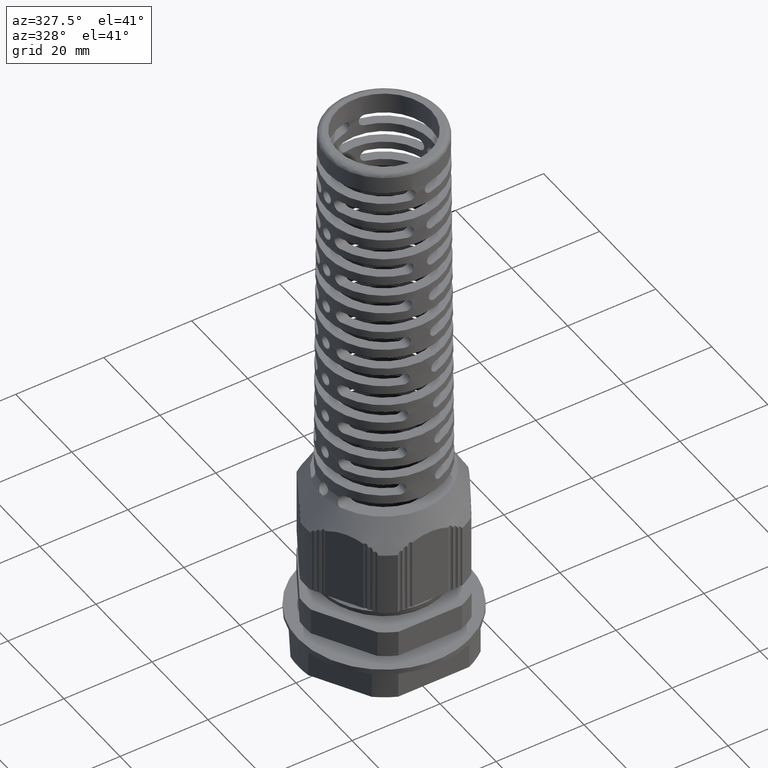
[diagram: clean part render]
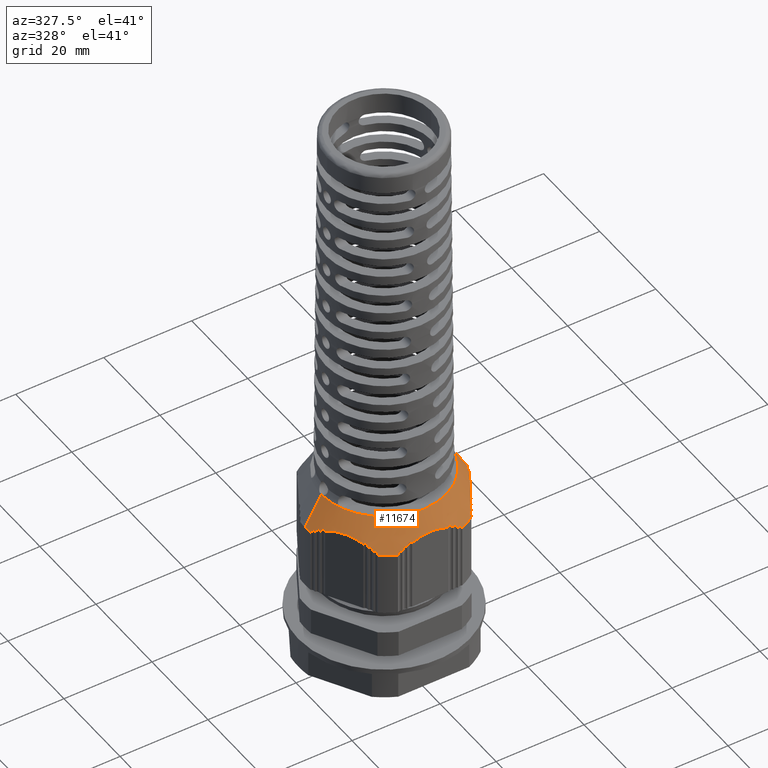
[diagram: same view with one face highlighted and labeled with its STEP entity id]
A machine part, auxiliary view. The second image highlights one B-rep face of the part: STEP entity #11674.
In plain terms, the highlighted conical surface has half-angle 30 deg.
Its self-contained STEP definition (entity closure, byte-faithful):
#8 = B_SPLINE_CURVE_WITH_KNOTS ( 'NONE', 3,
 ( #3475, #3492, #3537, #3540 ),
 .UNSPECIFIED., .F., .F.,
 ( 4, 4 ),
 ( 1.657818567789804900E-012, 3.768463748729941300E-005 ),
 .UNSPECIFIED. ) ;
#9 = B_SPLINE_CURVE_WITH_KNOTS ( 'NONE', 3,
 ( #3522, #3564, #3539, #3534 ),
 .UNSPECIFIED., .F., .F.,
 ( 4, 4 ),
 ( 0.0000000000000000000, 3.614374225597632400E-005 ),
 .UNSPECIFIED. ) ;
#10 = B_SPLINE_CURVE_WITH_KNOTS ( 'NONE', 3,
 ( #3561, #3565, #3562, #3527 ),
 .UNSPECIFIED., .F., .F.,
 ( 4, 4 ),
 ( 0.0000000000000000000, 3.614377529259854200E-005 ),
 .UNSPECIFIED. ) ;
#21 = B_SPLINE_CURVE_WITH_KNOTS ( 'NONE', 3,
 ( #3464, #3442, #3430, #3477 ),
 .UNSPECIFIED., .F., .F.,
 ( 4, 4 ),
 ( 0.0000000000000000000, 3.768466043906009000E-005 ),
 .UNSPECIFIED. ) ;
#23 = B_SPLINE_CURVE_WITH_KNOTS ( 'NONE', 3,
 ( #3452, #3461, #3517, #3508 ),
 .UNSPECIFIED., .F., .F.,
 ( 4, 4 ),
 ( 0.0000000000000000000, 3.768466043677225400E-005 ),
 .UNSPECIFIED. ) ;
#106 = CARTESIAN_POINT ( 'NONE',  ( 17.45096555473464800, -2.532737939307220900, 37.12086819999700500 ) ) ;
#109 = CARTESIAN_POINT ( 'NONE',  ( 17.63216870952717800, -2.068896659984395200, 36.91465410015154400 ) ) ;
#116 = CARTESIAN_POINT ( 'NONE',  ( 17.77596555473463600, -1.969821426847334400, 36.68617098982289100 ) ) ;
#117 = CARTESIAN_POINT ( 'NONE',  ( 17.50676003250795500, -2.260677491928459100, 37.08935860609306400 ) ) ;
#122 = CARTESIAN_POINT ( 'NONE',  ( 17.53636754049203400, -2.205883406013075200, 37.05038953506998900 ) ) ;
#124 = CARTESIAN_POINT ( 'NONE',  ( 17.70367904134039700, -2.011556064814277600, 36.80265157356609500 ) ) ;
#132 = CARTESIAN_POINT ( 'NONE',  ( 17.45096555473464400, -2.462446299459357200, 37.13835493011275400 ) ) ;
#134 = CARTESIAN_POINT ( 'NONE',  ( 17.46340495625039300, -2.389163662596400300, 37.13446396722070400 ) ) ;
#144 = CARTESIAN_POINT ( 'NONE',  ( 6.462216026127089600, -16.41967715904386400, 37.10080273938844200 ) ) ;
#146 = CARTESIAN_POINT ( 'NONE',  ( 6.592941726580483500, -16.34420264069709500, 37.13835493011275400 ) ) ;
#148 = CARTESIAN_POINT ( 'NONE',  ( -5.051916761105335500, -16.41967601915252900, 37.90827767607500900 ) ) ;
#149 = CARTESIAN_POINT ( 'NONE',  ( 7.109780867404339200, -16.33761382265408100, 36.80265157356611600 ) ) ;
#151 = CARTESIAN_POINT ( 'NONE',  ( -5.121572295108697000, -16.45989166045969700, 37.80606752403254900 ) ) ;
#153 = CARTESIAN_POINT ( 'NONE',  ( 6.532067380798567400, -16.37934846062102800, 37.12086819999700500 ) ) ;
#154 = CARTESIAN_POINT ( 'NONE',  ( 6.392551162525640200, -16.45989818679722200, 37.07985192468699200 ) ) ;
#158 = CARTESIAN_POINT ( 'NONE',  ( -10.80077890373241800, -13.92917049738966100, 37.13446396722070400 ) ) ;
#159 = CARTESIAN_POINT ( 'NONE',  ( -10.71118415402777100, -14.03096018014569400, 37.08935860609306400 ) ) ;
#160 = CARTESIAN_POINT ( 'NONE',  ( -10.67853483763995100, -14.08399807716034900, 37.05038953506998900 ) ) ;
#163 = CARTESIAN_POINT ( 'NONE',  ( -10.59389817393608300, -14.32605775783974500, 36.80265157356608800 ) ) ;
#165 = CARTESIAN_POINT ( 'NONE',  ( 6.532067380798567400, -16.37934846062102800, 37.12086819999700500 ) ) ;
#166 = CARTESIAN_POINT ( 'NONE',  ( 6.662626052517988600, -16.31833415998613300, 37.13446396722071100 ) ) ;
#168 = CARTESIAN_POINT ( 'NONE',  ( 6.323092777736080800, -16.49999999999997900, 37.05804326045672800 ) ) ;
#169 = CARTESIAN_POINT ( 'NONE',  ( 6.795575878480188500, -16.29163767207421300, 37.08935860609306400 ) ) ;
#171 = CARTESIAN_POINT ( 'NONE',  ( 6.857832702852100200, -16.28988148317348500, 37.05038953507001100 ) ) ;
#172 = CARTESIAN_POINT ( 'NONE',  ( 7.024367289412278800, -16.30435435625583200, 36.91465410015155900 ) ) ;
#173 = CARTESIAN_POINT ( 'NONE',  ( -4.982067380791194800, -16.37934846062565000, 38.01031052778964200 ) ) ;
#174 = CARTESIAN_POINT ( 'NONE',  ( -10.85802382815417600, -13.88175634123767200, 37.13835493011275400 ) ) ;
#175 = CARTESIAN_POINT ( 'NONE',  ( 7.182067380798575800, -16.37934846062102100, 36.68617098982289100 ) ) ;
#177 = CARTESIAN_POINT ( 'NONE',  ( -5.191041980690511300, -16.49999999999997200, 37.70368963659773000 ) ) ;
#179 = CARTESIAN_POINT ( 'NONE',  ( -10.91889817393609400, -13.84661052131373500, 37.12086819999700500 ) ) ;
#181 = CARTESIAN_POINT ( 'NONE',  ( -10.60780142011491700, -14.23545769627137100, 36.91465410015155900 ) ) ;
#185 = CARTESIAN_POINT ( 'NONE',  ( -10.59389817393608400, -14.40952703377363300, 36.68617098982288400 ) ) ;
#186 = CARTESIAN_POINT ( 'NONE',  ( 16.35096555473558800, -4.437993827634039200, 38.31815814875848500 ) ) ;
#189 = CARTESIAN_POINT ( 'NONE',  ( 16.35096555473559800, -4.375679236520197100, 38.34643027024579700 ) ) ;
#193 = CARTESIAN_POINT ( 'NONE',  ( 16.53201375891733300, -3.985359385948738200, 38.20901718458477300 ) ) ;
#210 = CARTESIAN_POINT ( 'NONE',  ( 5.121572270476191200, -16.45989166393535500, 37.80606756157827400 ) ) ;
#223 = CARTESIAN_POINT ( 'NONE',  ( 5.191041951570311700, -16.49999999255653200, 37.70368966403256600 ) ) ;
#232 = CARTESIAN_POINT ( 'NONE',  ( 16.63953693559175300, -3.896109388243100400, 38.06352382587051200 ) ) ;
#233 = CARTESIAN_POINT ( 'NONE',  ( 16.40097258229053900, -4.179083870676898900, 38.34872751843639100 ) ) ;
#235 = CARTESIAN_POINT ( 'NONE',  ( 5.051916749935081400, -16.41967601269635000, 37.90827769240362200 ) ) ;
#237 = CARTESIAN_POINT ( 'NONE',  ( 4.982067380798149300, -16.37934846062241700, 38.01031052779149600 ) ) ;
#239 = CARTESIAN_POINT ( 'NONE',  ( 16.43119724762483400, -4.119862267821316600, 38.32302955960277300 ) ) ;
#240 = CARTESIAN_POINT ( 'NONE',  ( 16.60341930773302400, -3.921514683722971700, 38.11438357344518100 ) ) ;
#241 = CARTESIAN_POINT ( 'NONE',  ( 16.67596555473564000, -3.875077315174169100, 38.01031052779149600 ) ) ;
#245 = CARTESIAN_POINT ( 'NONE',  ( 16.36066453907044500, -4.307454400129532100, 38.36055684361070200 ) ) ;
#247 = CARTESIAN_POINT ( 'NONE',  ( 16.49630212009360600, -4.024280846363105000, 38.25331230791356100 ) ) ;
#249 = CARTESIAN_POINT ( 'NONE',  ( -7.109913215976063400, -16.33769023413781300, 36.80243831056320400 ) ) ;
#252 = CARTESIAN_POINT ( 'NONE',  ( -12.01889817393686000, -11.94135463298861000, 38.31815814875879100 ) ) ;
#253 = CARTESIAN_POINT ( 'NONE',  ( -11.81967908769702900, -12.11411696769756200, 38.34872751843623500 ) ) ;
#269 = CARTESIAN_POINT ( 'NONE',  ( 11.69389817394393600, -12.50427114544392800, 38.01031052778927200 ) ) ;
#270 = CARTESIAN_POINT ( 'NONE',  ( 11.69389817394393900, -12.46223550991919600, 38.06348775848323400 ) ) ;
#271 = CARTESIAN_POINT ( 'NONE',  ( 11.71727443698303300, -12.32507188706089200, 38.20843834589265200 ) ) ;
#272 = CARTESIAN_POINT ( 'NONE',  ( 11.73301922983133000, -12.27471118833628200, 38.25283121991731900 ) ) ;
#273 = CARTESIAN_POINT ( 'NONE',  ( 11.78337446780552400, -12.17007953405269300, 38.32296722670135100 ) ) ;
#274 = CARTESIAN_POINT ( 'NONE',  ( 11.96478447967845100, -11.97259718893486500, 38.34650763550168800 ) ) ;
#279 = CARTESIAN_POINT ( 'NONE',  ( 12.01889817394385900, -11.94135463298394700, 38.31815814875589900 ) ) ;
#281 = CARTESIAN_POINT ( 'NONE',  ( -11.78350400783850200, -12.16990309712568300, 38.32302955960259500 ) ) ;
#282 = CARTESIAN_POINT ( 'NONE',  ( -11.73328050496036400, -12.27407628132278800, 38.25331230791336900 ) ) ;
#286 = CARTESIAN_POINT ( 'NONE',  ( 11.69784280069586500, -12.41835178426636900, 38.11422140716953100 ) ) ;
#288 = CARTESIAN_POINT ( 'NONE',  ( -11.96493215500588800, -11.97251192854558800, 38.34643027024598900 ) ) ;
#295 = CARTESIAN_POINT ( 'NONE',  ( -7.182067380799757900, -16.37934846062193700, 36.68617098982061700 ) ) ;
#296 = CARTESIAN_POINT ( 'NONE',  ( 11.91074828422712500, -12.01484888652358100, 38.36071631109474100 ) ) ;
#297 = CARTESIAN_POINT ( 'NONE',  ( -11.91069720569003600, -12.01502391356584300, 38.36055684361074500 ) ) ;
#298 = CARTESIAN_POINT ( 'NONE',  ( -11.71742935090103200, -12.32446419796202400, 38.20901718458463100 ) ) ;
#300 = CARTESIAN_POINT ( 'NONE',  ( 11.81858131135661200, -12.11543291639517500, 38.34843027069536000 ) ) ;
#301 = CARTESIAN_POINT ( 'NONE',  ( -11.69784099128434800, -12.41822556832038200, 38.11438357344508200 ) ) ;
#304 = CARTESIAN_POINT ( 'NONE',  ( -17.53712379341464400, -2.204558070567608200, 37.04937653547198600 ) ) ;
#305 = CARTESIAN_POINT ( 'NONE',  ( -7.026251018504942700, -16.30480506928053000, 36.91264696688500600 ) ) ;
#306 = CARTESIAN_POINT ( 'NONE',  ( -17.50735882695864700, -2.259404994873589700, 37.08861115551336200 ) ) ;
#307 = CARTESIAN_POINT ( 'NONE',  ( -17.45096555473594800, -2.532737939306504100, 37.12086819999495200 ) ) ;
#316 = CARTESIAN_POINT ( 'NONE',  ( -11.69389817393750200, -12.50427114544819700, 38.01031052779148200 ) ) ;
#317 = CARTESIAN_POINT ( 'NONE',  ( -6.532067380799713200, -16.37934846062190500, 37.12086819999486700 ) ) ;
#326 = CARTESIAN_POINT ( 'NONE',  ( -17.77596555473600800, -1.969821426846588100, 36.68617098982067400 ) ) ;
#329 = CARTESIAN_POINT ( 'NONE',  ( -6.859358603477577500, -16.28987374969352700, 37.04937653547191400 ) ) ;
#331 = CARTESIAN_POINT ( 'NONE',  ( -6.796977290481158300, -16.29151999475283200, 37.08861115551329100 ) ) ;
#333 = CARTESIAN_POINT ( 'NONE',  ( -17.45096555473595100, -2.462217261631882300, 37.13841190875951500 ) ) ;
#335 = CARTESIAN_POINT ( 'NONE',  ( -17.63350090300270200, -2.067490659248471200, 36.91264696688506300 ) ) ;
#338 = CARTESIAN_POINT ( 'NONE',  ( -17.46378445169777600, -2.387548105964422800, 37.13419086018000600 ) ) ;
#345 = CARTESIAN_POINT ( 'NONE',  ( -17.70381138991230700, -2.011479653330696200, 36.80243831056325400 ) ) ;
#346 = CARTESIAN_POINT ( 'NONE',  ( -6.664214913326093300, -16.31785503436829300, 37.13419086017992000 ) ) ;
#359 = CARTESIAN_POINT ( 'NONE',  ( -11.69389817393750200, -12.46220699931037700, 38.06352382587046900 ) ) ;
#360 = CARTESIAN_POINT ( 'NONE',  ( -6.593140079158025000, -16.34408812178459400, 37.13841190875942300 ) ) ;
#361 = CARTESIAN_POINT ( 'NONE',  ( -4.647910808663928300, -16.28974139845064800, 38.32296722670172800 ) ) ;
#365 = CARTESIAN_POINT ( 'NONE',  ( -16.67596555473491200, -3.875077315181643100, 38.01031052778979100 ) ) ;
#371 = CARTESIAN_POINT ( 'NONE',  ( -16.43128527646925400, -4.119661864397872200, 38.32296722670186300 ) ) ;
#376 = CARTESIAN_POINT ( 'NONE',  ( -16.35096555473480300, -4.437993827641499900, 38.31815814875642400 ) ) ;
#377 = CARTESIAN_POINT ( 'NONE',  ( -16.35096555473474900, -4.375508715739573300, 38.34650763550219200 ) ) ;
#378 = CARTESIAN_POINT ( 'NONE',  ( -4.582982027766076000, -16.29290811052419500, 38.34843027069574400 ) ) ;
#384 = CARTESIAN_POINT ( 'NONE',  ( -4.905686717958527500, -16.33980492701248400, 38.11422140716990700 ) ) ;
#385 = CARTESIAN_POINT ( 'NONE',  ( -4.945663452562553400, -16.35833064286328300, 38.06348775848362500 ) ) ;
#390 = CARTESIAN_POINT ( 'NONE',  ( -16.63956162650628200, -3.896095132944007700, 38.06348775848374500 ) ) ;
#392 = CARTESIAN_POINT ( 'NONE',  ( -16.60352951865417700, -3.921453142746043500, 38.11422140717003500 ) ) ;
#394 = CARTESIAN_POINT ( 'NONE',  ( -16.53246257615543500, -3.984921382010568900, 38.20843834589316400 ) ) ;
#395 = CARTESIAN_POINT ( 'NONE',  ( -16.49672132813173100, -4.023737121956817700, 38.25283121991783700 ) ) ;
#397 = CARTESIAN_POINT ( 'NONE',  ( -4.982067380791194800, -16.37934846062565000, 38.01031052778964200 ) ) ;
#401 = CARTESIAN_POINT ( 'NONE',  ( -16.40156333912249300, -4.177475194128939900, 38.34843027069587200 ) ) ;
#402 = CARTESIAN_POINT ( 'NONE',  ( -4.815188139172600600, -16.30999326907153700, 38.20843834589304300 ) ) ;
#403 = CARTESIAN_POINT ( 'NONE',  ( -4.763702098300608900, -16.29844831029318200, 38.25283121991769500 ) ) ;
#404 = CARTESIAN_POINT ( 'NONE',  ( -4.332067380791135000, -16.37934846062554000, 38.31815814875627500 ) ) ;
#406 = CARTESIAN_POINT ( 'NONE',  ( -4.449790216247006200, -16.32243503548417600, 38.36071631109513200 ) ) ;
#407 = CARTESIAN_POINT ( 'NONE',  ( -4.386181075056490500, -16.34810590467452900, 38.34650763550207800 ) ) ;
#408 = CARTESIAN_POINT ( 'NONE',  ( -16.36053850047393300, -4.307586148960505000, 38.36071631109525300 ) ) ;
#427 = CARTESIAN_POINT ( 'NONE',  ( -10.59389817393608400, -14.55229608963045400, 36.48659403398754400 ) ) ;
#428 = CARTESIAN_POINT ( 'NONE',  ( -10.59389817393608400, -14.50476028639215000, 36.55315819794078900 ) ) ;
#433 = CARTESIAN_POINT ( 'NONE',  ( -10.59389817393608400, -14.45717104007883900, 36.61968423042301900 ) ) ;
#434 = CARTESIAN_POINT ( 'NONE',  ( -10.59389817393608400, -14.40952703377363300, 36.68617098982288400 ) ) ;
#442 = CARTESIAN_POINT ( 'NONE',  ( 16.35096555473558800, -4.437993827634039200, 38.31815814875848500 ) ) ;
#461 = CARTESIAN_POINT ( 'NONE',  ( 16.35096555473558800, -4.518778170558198900, 38.28150630339445800 ) ) ;
#463 = CARTESIAN_POINT ( 'NONE',  ( 4.581293494593710500, -16.29320083837407700, 38.34872751843624200 ) ) ;
#464 = CARTESIAN_POINT ( 'NONE',  ( 4.814584408016426800, -16.30982358391070300, 38.20901718458463100 ) ) ;
#465 = CARTESIAN_POINT ( 'NONE',  ( 4.905578316448750100, -16.33974025204336700, 38.11438357344508900 ) ) ;
#466 = CARTESIAN_POINT ( 'NONE',  ( 4.945638761654297600, -16.35831638755350400, 38.06352382587047600 ) ) ;
#467 = CARTESIAN_POINT ( 'NONE',  ( 4.982067380798149300, -16.37934846062241700, 38.01031052779149600 ) ) ;
#468 = CARTESIAN_POINT ( 'NONE',  ( -17.89960718398096900, -1.898436898919026100, 36.48659403398752900 ) ) ;
#471 = CARTESIAN_POINT ( 'NONE',  ( -12.01889817393686000, -11.94135463298861000, 38.31815814875879100 ) ) ;
#472 = CARTESIAN_POINT ( 'NONE',  ( -17.77596555473600800, -1.969821426846588100, 36.68617098982067400 ) ) ;
#476 = CARTESIAN_POINT ( 'NONE',  ( -12.22787279274673900, -11.82070308056492400, 38.20591730645596600 ) ) ;
#480 = CARTESIAN_POINT ( 'NONE',  ( 16.35096555473558800, -4.679296932480800000, 38.20591730645592300 ) ) ;
#485 = CARTESIAN_POINT ( 'NONE',  ( -17.85843997078775300, -1.922204800537894000, 36.55315819794005000 ) ) ;
#488 = CARTESIAN_POINT ( 'NONE',  ( 4.332067380798738700, -16.37934846062201200, 38.31815814875880500 ) ) ;
#492 = CARTESIAN_POINT ( 'NONE',  ( 4.386033399729788200, -16.34819116506516300, 38.34643027024601000 ) ) ;
#494 = CARTESIAN_POINT ( 'NONE',  ( -12.08885946713739300, -11.90096246152642400, 38.28150630339468600 ) ) ;
#499 = CARTESIAN_POINT ( 'NONE',  ( -17.81722647453392800, -1.945999423694267000, 36.61968423042154800 ) ) ;
#501 = CARTESIAN_POINT ( 'NONE',  ( -7.182067380799757900, -16.37934846062193700, 36.68617098982061700 ) ) ;
#502 = CARTESIAN_POINT ( 'NONE',  ( 16.35096555473558800, -4.599215231126248000, 38.24407990346585300 ) ) ;
#503 = CARTESIAN_POINT ( 'NONE',  ( -7.223328300597656500, -16.40317046377427300, 36.61968423042150500 ) ) ;
#505 = CARTESIAN_POINT ( 'NONE',  ( -12.15852000499524600, -11.86074393124229900, 38.24407990346598800 ) ) ;
#506 = CARTESIAN_POINT ( 'NONE',  ( 4.647693239786539400, -16.28976536494671700, 38.32302955960260200 ) ) ;
#508 = CARTESIAN_POINT ( 'NONE',  ( 4.449967333380556900, -16.32247831369480600, 38.36055684361075200 ) ) ;
#509 = CARTESIAN_POINT ( 'NONE',  ( 4.763021615133411000, -16.29835712768576500, 38.25331230791339700 ) ) ;
#510 = CARTESIAN_POINT ( 'NONE',  ( 7.223328300596953100, -16.40317046377362700, 36.61968423042303300 ) ) ;
#511 = CARTESIAN_POINT ( 'NONE',  ( 10.60724988449794100, -14.23731441003191400, 36.91264696688468700 ) ) ;
#512 = CARTESIAN_POINT ( 'NONE',  ( 7.264541796851238700, -16.42696508693028100, 36.55315819794078900 ) ) ;
#514 = CARTESIAN_POINT ( 'NONE',  ( 10.71038153647769100, -14.03211499987911800, 37.08861115551295000 ) ) ;
#519 = CARTESIAN_POINT ( 'NONE',  ( 7.305709010044917100, -16.45073298854943600, 36.48659403398754400 ) ) ;
#520 = CARTESIAN_POINT ( 'NONE',  ( 10.79956953837188600, -13.93030692840376300, 37.13419086017957200 ) ) ;
#522 = CARTESIAN_POINT ( 'NONE',  ( 10.85782547557812600, -13.88187086015261200, 37.13841190875907500 ) ) ;
#525 = CARTESIAN_POINT ( 'NONE',  ( 10.67776518993726700, -14.08531567912578600, 37.04937653547160200 ) ) ;
#527 = CARTESIAN_POINT ( 'NONE',  ( 10.91889817393643400, -13.84661052131530900, 37.12086819999450400 ) ) ;
#536 = CARTESIAN_POINT ( 'NONE',  ( -7.305709010044655100, -16.45073298854955400, 36.48659403398753700 ) ) ;
#539 = CARTESIAN_POINT ( 'NONE',  ( -7.264541796851464300, -16.42696508693066800, 36.55315819794003600 ) ) ;
#548 = CARTESIAN_POINT ( 'NONE',  ( 10.59389817393642400, -14.32621058080697200, 36.80243831056289100 ) ) ;
#549 = CARTESIAN_POINT ( 'NONE',  ( 10.59389817393642000, -14.40952703377520400, 36.68617098982034000 ) ) ;
#551 = CARTESIAN_POINT ( 'NONE',  ( 7.182067380798575800, -16.37934846062102100, 36.68617098982289100 ) ) ;
#582 = CARTESIAN_POINT ( 'NONE',  ( 17.89960718398097600, -1.898436898918910400, 36.48659403398754400 ) ) ;
#588 = CARTESIAN_POINT ( 'NONE',  ( 17.81722647453301200, -1.945999423694728400, 36.61968423042303300 ) ) ;
#589 = CARTESIAN_POINT ( 'NONE',  ( 17.77596555473463600, -1.969821426847334400, 36.68617098982289100 ) ) ;
#608 = CARTESIAN_POINT ( 'NONE',  ( 17.85843997078730200, -1.922204800538070500, 36.55315819794079600 ) ) ;
#665 = CARTESIAN_POINT ( 'NONE',  ( -13.58751675164721600, -9.465730637454676400, 39.00595898241049000 ) ) ;
#667 = CARTESIAN_POINT ( 'NONE',  ( -12.39214986961126600, -11.53616681082538900, 38.34387762314064900 ) ) ;
#668 = DIRECTION ( 'NONE',  ( -0.0000000000000000000, -0.0000000000000000000, 1.000000000000000000 ) ) ;
#670 = CARTESIAN_POINT ( 'NONE',  ( -14.46594612645625600, -7.944246329424998100, 39.08466891770799400 ) ) ;
#672 = CARTESIAN_POINT ( 'NONE',  ( -12.22787279274673900, -11.82070308056492400, 38.20591730645596600 ) ) ;
#675 = CARTESIAN_POINT ( 'NONE',  ( -16.35096555473486300, -4.679296906393199500, 38.20591731888906400 ) ) ;
#676 = CARTESIAN_POINT ( 'NONE',  ( -14.64462676402723300, -7.634762386823394000, 39.06469985283408900 ) ) ;
#679 = CARTESIAN_POINT ( 'NONE',  ( -12.89754414004479900, -10.66079825658061100, 38.68652689665290700 ) ) ;
#689 = CARTESIAN_POINT ( 'NONE',  ( -15.68750879575583900, -5.828437721569432700, 38.70129799979348900 ) ) ;
#690 = CARTESIAN_POINT ( 'NONE',  ( -15.17169404473242800, -6.721855077635142500, 38.92778421832893800 ) ) ;
#691 = CARTESIAN_POINT ( 'NONE',  ( -14.99759285552484800, -7.023407183000727200, 38.98606254506238100 ) ) ;
#693 = CARTESIAN_POINT ( 'NONE',  ( -13.93641897138600600, -8.861414265993747800, 39.08467290040108100 ) ) ;
#694 = CARTESIAN_POINT ( 'NONE',  ( -13.06979643879379400, -10.36244852342692700, 38.78015625149139100 ) ) ;
#696 = CARTESIAN_POINT ( 'NONE',  ( -16.02274814258785800, -5.247786140160391400, 38.48155509909682300 ) ) ;
#697 = CARTESIAN_POINT ( 'NONE',  ( -12.55880755913052700, -11.24750722510609100, 38.46833992483015400 ) ) ;
#698 = DIRECTION ( 'NONE',  ( -1.000000000000000000, -1.776356839400250500E-015, 0.0000000000000000000 ) ) ;
#710 = CARTESIAN_POINT ( 'NONE',  ( 0.0000000000000000000, 0.0000000000000000000, 36.48659403398754400 ) ) ;
#765 = CARTESIAN_POINT ( 'NONE',  ( 10.59389817393640100, -14.50476028639252100, 36.55315819793994300 ) ) ;
#786 = CARTESIAN_POINT ( 'NONE',  ( 10.59389817393642000, -14.40952703377520400, 36.68617098982034000 ) ) ;
#800 = CARTESIAN_POINT ( 'NONE',  ( 10.59389817393640800, -14.45717104007981200, 36.61968423042132800 ) ) ;
#802 = CARTESIAN_POINT ( 'NONE',  ( 10.59389817393639500, -14.55229608963022700, 36.48659403398754400 ) ) ;
#958 = CARTESIAN_POINT ( 'NONE',  ( 0.0000000000000000000, 0.0000000000000000000, 36.48659403398754400 ) ) ;
#959 = DIRECTION ( 'NONE',  ( -1.000000000000000000, 0.0000000000000000000, 0.0000000000000000000 ) ) ;
#961 = DIRECTION ( 'NONE',  ( -0.0000000000000000000, -0.0000000000000000000, 1.000000000000000000 ) ) ;
#974 = CARTESIAN_POINT ( 'NONE',  ( 4.123092761988784700, -16.50000001304573900, 38.20591730645593700 ) ) ;
#987 = CARTESIAN_POINT ( 'NONE',  ( 4.332067380798738700, -16.37934846062201200, 38.31815814875880500 ) ) ;
#993 = CARTESIAN_POINT ( 'NONE',  ( 4.262106087598179500, -16.41974063208420600, 38.28150630339467900 ) ) ;
#999 = CARTESIAN_POINT ( 'NONE',  ( 4.192445549740303300, -16.45995916236834600, 38.24407990346597300 ) ) ;
#1012 = CARTESIAN_POINT ( 'NONE',  ( -4.123092784583231900, -16.50000000000004300, 38.20591731889025100 ) ) ;
#1015 = CARTESIAN_POINT ( 'NONE',  ( -4.332067380791135000, -16.37934846062554000, 38.31815814875627500 ) ) ;
#1021 = CARTESIAN_POINT ( 'NONE',  ( -4.262106102788084000, -16.41974062331352600, 38.28150631135373800 ) ) ;
#1034 = CARTESIAN_POINT ( 'NONE',  ( -4.192445579997595000, -16.45995914489850500, 38.24407991972353900 ) ) ;
#1673 = EDGE_LOOP ( 'NONE', ( #18025, #18016, #18021, #18040, #18009, #18027, #18017, #18063, #18013, #18028, #18030, #18024, #18047, #18018, #18057, #17988, #18055, #18037, #18029, #18036, #18015, #18046, #18012, #18054, #18059, #18056, #17996, #18019, #18008, #18052, #18006, #18041, #18005, #18066, #18065, #18032, #18004, #18010, #18033, #18060, #18039, #18049, #18053, #18126, #18068, #18074, #18129, #18069, #18095, #18106, #18117, #18090, #18104, #18130, #18079, #18094, #18110, #18124, #18093, #18088, #18128, #18080, #18045, #18075, #18082, #18127, #18050, #18083, #18098, #18108, #18085, #18072, #18125, #18077, #18119, #18086, #18105, #18120 ) ) ;
#1788 = B_SPLINE_CURVE_WITH_KNOTS ( 'NONE', 3,
 ( #21021, #21044, #21026, #21006, #20993, #21003, #21022, #21004, #21018, #20996, #21011, #21016, #21013, #21017 ),
 .UNSPECIFIED., .F., .F.,
 ( 4, 2, 2, 2, 2, 2, 4 ),
 ( 3.469446951953614200E-018, 0.002111443737917640400, 0.003167165606876460100, 0.004222887475835280700, 0.006334331213752921100, 0.007390053082711739100, 0.008445774951670556200 ),
 .UNSPECIFIED. ) ;
#1789 = B_SPLINE_CURVE_WITH_KNOTS ( 'NONE', 3,
 ( #582, #608, #588, #589 ),
 .UNSPECIFIED., .F., .F.,
 ( 4, 4 ),
 ( 6.505213034913026600E-019, 0.0002453853390297734200 ),
 .UNSPECIFIED. ) ;
#1790 = B_SPLINE_CURVE_WITH_KNOTS ( 'NONE', 3,
 ( #786, #800, #765, #802 ),
 .UNSPECIFIED., .F., .F.,
 ( 4, 4 ),
 ( 1.734723475976807100E-018, 0.0002453853390266388300 ),
 .UNSPECIFIED. ) ;
#1792 = B_SPLINE_CURVE_WITH_KNOTS ( 'NONE', 3,
 ( #1012, #1034, #1021, #1015 ),
 .UNSPECIFIED., .F., .F.,
 ( 4, 4 ),
 ( 2.602085213965210600E-018, 0.0002661300052656766800 ),
 .UNSPECIFIED. ) ;
#1793 = B_SPLINE_CURVE_WITH_KNOTS ( 'NONE', 3,
 ( #987, #993, #999, #974 ),
 .UNSPECIFIED., .F., .F.,
 ( 4, 4 ),
 ( 0.0000000000000000000, 0.0002661300341747961300 ),
 .UNSPECIFIED. ) ;
#1794 = B_SPLINE_CURVE_WITH_KNOTS ( 'NONE', 3,
 ( #21057, #21052, #21070, #21058 ),
 .UNSPECIFIED., .F., .F.,
 ( 4, 4 ),
 ( 0.0000000000000000000, 0.0002661300052684177000 ),
 .UNSPECIFIED. ) ;
#1795 = B_SPLINE_CURVE_WITH_KNOTS ( 'NONE', 3,
 ( #21065, #21087, #21096, #21067 ),
 .UNSPECIFIED., .F., .F.,
 ( 4, 4 ),
 ( 1.734723475976807100E-018, 0.0002661300052687834000 ),
 .UNSPECIFIED. ) ;
#1796 = B_SPLINE_CURVE_WITH_KNOTS ( 'NONE', 3,
 ( #675, #696, #689, #690, #691, #676, #670, #693, #665, #694, #679, #697, #667, #672 ),
 .UNSPECIFIED., .F., .F.,
 ( 4, 2, 2, 2, 2, 2, 4 ),
 ( 8.673617379884035500E-019, 0.002111443737917036200, 0.003167165606875556300, 0.004222887475834076000, 0.006334331213751118700, 0.007390053082709642700, 0.008445774951668167500 ),
 .UNSPECIFIED. ) ;
#1998 = EDGE_CURVE ( 'NONE', #18729, #20222, #22647, .T. ) ;
#2026 = EDGE_CURVE ( 'NONE', #16052, #11433, #22645, .T. ) ;
#2029 = EDGE_CURVE ( 'NONE', #16052, #20222, #22661, .T. ) ;
#2076 = EDGE_CURVE ( 'NONE', #15892, #11365, #22740, .T. ) ;
#2411 = EDGE_CURVE ( 'NONE', #11433, #11365, #8939, .T. ) ;
#2444 = EDGE_CURVE ( 'NONE', #18729, #11549, #9087, .T. ) ;
#2562 = EDGE_CURVE ( 'NONE', #11549, #11579, #21951, .T. ) ;
#2599 = EDGE_CURVE ( 'NONE', #18564, #18565, #20114, .T. ) ;
#2615 = EDGE_CURVE ( 'NONE', #18556, #18586, #11877, .T. ) ;
#2626 = EDGE_CURVE ( 'NONE', #18577, #18540, #11882, .T. ) ;
#2634 = EDGE_CURVE ( 'NONE', #18536, #18559, #11891, .T. ) ;
#2645 = EDGE_CURVE ( 'NONE', #18544, #15699, #11883, .T. ) ;
#2652 = EDGE_CURVE ( 'NONE', #15689, #18540, #11888, .T. ) ;
#2655 = EDGE_CURVE ( 'NONE', #18556, #18576, #11889, .T. ) ;
#2657 = EDGE_CURVE ( 'NONE', #18537, #18560, #11879, .T. ) ;
#2679 = EDGE_CURVE ( 'NONE', #18544, #18642, #11846, .T. ) ;
#2695 = EDGE_CURVE ( 'NONE', #15778, #18565, #11833, .T. ) ;
#2696 = EDGE_CURVE ( 'NONE', #18537, #15770, #11848, .T. ) ;
#3123 = CARTESIAN_POINT ( 'NONE',  ( 11.67787276762835400, -12.77333103922975600, 37.68698284351913900 ) ) ;
#3152 = CARTESIAN_POINT ( 'NONE',  ( 17.43494013782712000, -2.801797839210478100, 37.07786445040767400 ) ) ;
#3166 = CARTESIAN_POINT ( 'NONE',  ( -6.323092783131790500, -16.49999999919473500, 37.05804325841482700 ) ) ;
#3167 = CARTESIAN_POINT ( 'NONE',  ( 11.69389817209870200, -12.74557422739166100, 37.70368963659405600 ) ) ;
#3176 = CARTESIAN_POINT ( 'NONE',  ( 6.291041963888831700, -16.49999999242445600, 37.07786445040779500 ) ) ;
#3180 = CARTESIAN_POINT ( 'NONE',  ( 11.14389817170660600, -13.69820217701505200, 37.07786442086803200 ) ) ;
#3195 = CARTESIAN_POINT ( 'NONE',  ( -11.12787277357519500, -13.72595897600533900, 37.05804326045672100 ) ) ;
#3205 = CARTESIAN_POINT ( 'NONE',  ( 6.323092777736080800, -16.49999999999997900, 37.05804326045672800 ) ) ;
#3229 = CARTESIAN_POINT ( 'NONE',  ( -16.88494015279141200, -3.754425772608604100, 37.70368963659347400 ) ) ;
#3230 = CARTESIAN_POINT ( 'NONE',  ( -4.982067380791194800, -16.37934846062565000, 38.01031052778964200 ) ) ;
#3233 = CARTESIAN_POINT ( 'NONE',  ( -10.91889817393609400, -13.84661052131373500, 37.12086819999700500 ) ) ;
#3239 = CARTESIAN_POINT ( 'NONE',  ( -11.67787276915335000, -12.77333103532864900, 37.68698284672378000 ) ) ;
#3241 = CARTESIAN_POINT ( 'NONE',  ( 16.90096555211948400, -3.726668962585012200, 37.68698284672375800 ) ) ;
#3242 = CARTESIAN_POINT ( 'NONE',  ( -17.45096555331173600, -2.774041018919586800, 37.05804325841475600 ) ) ;
#3243 = CARTESIAN_POINT ( 'NONE',  ( -5.223092787109706600, -16.49999999854178500, 37.68698284352063200 ) ) ;
#3249 = CARTESIAN_POINT ( 'NONE',  ( -6.291041985617193100, -16.50000000239211700, 37.07786442086839400 ) ) ;
#3252 = CARTESIAN_POINT ( 'NONE',  ( 6.532067380798567400, -16.37934846062102800, 37.12086819999700500 ) ) ;
#3255 = CARTESIAN_POINT ( 'NONE',  ( -17.45096555473594800, -2.532737939306504100, 37.12086819999495200 ) ) ;
#3256 = CARTESIAN_POINT ( 'NONE',  ( 5.223092782966034500, -16.49999999791371200, 37.68698284672374400 ) ) ;
#3258 = CARTESIAN_POINT ( 'NONE',  ( 17.45096555473464800, -2.532737939307220900, 37.12086819999700500 ) ) ;
#3260 = CARTESIAN_POINT ( 'NONE',  ( -6.532067380799713200, -16.37934846062190500, 37.12086819999486700 ) ) ;
#3264 = CARTESIAN_POINT ( 'NONE',  ( 11.12787277018027700, -13.72595898027560000, 37.05804325841441500 ) ) ;
#3267 = CARTESIAN_POINT ( 'NONE',  ( -16.67596555473491200, -3.875077315181643100, 38.01031052778979100 ) ) ;
#3270 = CARTESIAN_POINT ( 'NONE',  ( -11.14389817393824300, -13.69820215321387600, 37.07786445040779500 ) ) ;
#3274 = CARTESIAN_POINT ( 'NONE',  ( 4.982067380798149300, -16.37934846062241700, 38.01031052779149600 ) ) ;
#3275 = CARTESIAN_POINT ( 'NONE',  ( 5.191041951570311700, -16.49999999255653200, 37.70368966403256600 ) ) ;
#3287 = CARTESIAN_POINT ( 'NONE',  ( -5.191041980690511300, -16.49999999999997200, 37.70368963659773000 ) ) ;
#3296 = CARTESIAN_POINT ( 'NONE',  ( -17.77596555473600800, -1.969821426846588100, 36.68617098982067400 ) ) ;
#3297 = CARTESIAN_POINT ( 'NONE',  ( 7.182067380798575800, -16.37934846062102100, 36.68617098982289100 ) ) ;
#3307 = CARTESIAN_POINT ( 'NONE',  ( 17.77596555473463600, -1.969821426847334400, 36.68617098982289100 ) ) ;
#3308 = CARTESIAN_POINT ( 'NONE',  ( -11.69389817393750200, -12.50427114544819700, 38.01031052779148200 ) ) ;
#3309 = CARTESIAN_POINT ( 'NONE',  ( 11.69389817394393600, -12.50427114544392800, 38.01031052778927200 ) ) ;
#3310 = CARTESIAN_POINT ( 'NONE',  ( 10.59389817393642000, -14.40952703377520400, 36.68617098982034000 ) ) ;
#3311 = CARTESIAN_POINT ( 'NONE',  ( -16.35096555473486300, -4.679296906393199500, 38.20591731888906400 ) ) ;
#3317 = CARTESIAN_POINT ( 'NONE',  ( 4.123092761988784700, -16.50000001304573900, 38.20591730645593700 ) ) ;
#3320 = CARTESIAN_POINT ( 'NONE',  ( 17.45096555131127400, -2.774041023994654700, 37.05804326045669900 ) ) ;
#3325 = CARTESIAN_POINT ( 'NONE',  ( 10.91889817393643400, -13.84661052131530900, 37.12086819999450400 ) ) ;
#3329 = CARTESIAN_POINT ( 'NONE',  ( 4.332067380798738700, -16.37934846062201200, 38.31815814875880500 ) ) ;
#3337 = CARTESIAN_POINT ( 'NONE',  ( 17.89960718398097600, -1.898436898918910400, 36.48659403398754400 ) ) ;
#3342 = CARTESIAN_POINT ( 'NONE',  ( 16.88494013178210600, -3.754425794107622200, 37.70368966403266600 ) ) ;
#3345 = CARTESIAN_POINT ( 'NONE',  ( 16.67596555473564000, -3.875077315174169100, 38.01031052779149600 ) ) ;
#3348 = CARTESIAN_POINT ( 'NONE',  ( -12.22787279274673900, -11.82070308056492400, 38.20591730645596600 ) ) ;
#3363 = CARTESIAN_POINT ( 'NONE',  ( -12.01889817393686000, -11.94135463298861000, 38.31815814875879100 ) ) ;
#3372 = CARTESIAN_POINT ( 'NONE',  ( -4.123092784583231900, -16.50000000000004300, 38.20591731889025100 ) ) ;
#3378 = CARTESIAN_POINT ( 'NONE',  ( -16.35096555473480300, -4.437993827641499900, 38.31815814875642400 ) ) ;
#3383 = CARTESIAN_POINT ( 'NONE',  ( -10.59389817393608400, -14.55229608963045400, 36.48659403398754400 ) ) ;
#3384 = CARTESIAN_POINT ( 'NONE',  ( 12.22787277015397200, -11.82070309360831600, 38.20591731888870200 ) ) ;
#3393 = CARTESIAN_POINT ( 'NONE',  ( 16.35096555473558800, -4.437993827634039200, 38.31815814875848500 ) ) ;
#3395 = CARTESIAN_POINT ( 'NONE',  ( -4.332067380791135000, -16.37934846062554000, 38.31815814875627500 ) ) ;
#3396 = CARTESIAN_POINT ( 'NONE',  ( -7.182067380799757900, -16.37934846062193700, 36.68617098982061700 ) ) ;
#3397 = CARTESIAN_POINT ( 'NONE',  ( -7.305709010044655100, -16.45073298854955400, 36.48659403398753700 ) ) ;
#3398 = CARTESIAN_POINT ( 'NONE',  ( 7.305709010044917100, -16.45073298854943600, 36.48659403398754400 ) ) ;
#3401 = CARTESIAN_POINT ( 'NONE',  ( -10.59389817393608400, -14.40952703377363300, 36.68617098982288400 ) ) ;
#3407 = CARTESIAN_POINT ( 'NONE',  ( 10.59389817393639500, -14.55229608963022700, 36.48659403398754400 ) ) ;
#3411 = CARTESIAN_POINT ( 'NONE',  ( 12.01889817394385900, -11.94135463298394700, 38.31815814875589900 ) ) ;
#3430 = CARTESIAN_POINT ( 'NONE',  ( 17.44028521715409100, -2.792539905396725300, 37.07126799502055500 ) ) ;
#3442 = CARTESIAN_POINT ( 'NONE',  ( 17.44562702723516200, -2.783287634222220600, 37.06466090984085300 ) ) ;
#3446 = CARTESIAN_POINT ( 'NONE',  ( 16.35096555473558800, -4.679296932480800000, 38.20591730645592300 ) ) ;
#3452 = CARTESIAN_POINT ( 'NONE',  ( -11.12787277357519500, -13.72595897600533900, 37.05804326045672100 ) ) ;
#3453 = CARTESIAN_POINT ( 'NONE',  ( 13.04115084166100400, -5.599999999999990800, 43.08109929398128900 ) ) ;
#3461 = CARTESIAN_POINT ( 'NONE',  ( -11.13321130492651400, -13.71671236846706100, 37.06466090772808300 ) ) ;
#3464 = CARTESIAN_POINT ( 'NONE',  ( 17.45096555131127400, -2.774041023994654700, 37.05804326045669900 ) ) ;
#3475 = CARTESIAN_POINT ( 'NONE',  ( -17.43494015732410700, -2.801797825376524600, 37.07786442086746300 ) ) ;
#3477 = CARTESIAN_POINT ( 'NONE',  ( 17.43494013782712000, -2.801797839210478100, 37.07786445040767400 ) ) ;
#3492 = CARTESIAN_POINT ( 'NONE',  ( -17.44028522613311700, -2.792539879856113800, 37.07126797666039400 ) ) ;
#3508 = CARTESIAN_POINT ( 'NONE',  ( -11.14389817393824300, -13.69820215321387600, 37.07786445040779500 ) ) ;
#3517 = CARTESIAN_POINT ( 'NONE',  ( -11.13855310773278600, -13.70746009460258500, 37.07126799502107400 ) ) ;
#3522 = CARTESIAN_POINT ( 'NONE',  ( -5.191041980690511300, -16.49999999999997200, 37.70368963659773000 ) ) ;
#3527 = CARTESIAN_POINT ( 'NONE',  ( 5.191041951570311700, -16.49999999255653200, 37.70368966403256600 ) ) ;
#3534 = CARTESIAN_POINT ( 'NONE',  ( -5.223092787109706600, -16.49999999854178500, 37.68698284352063200 ) ) ;
#3537 = CARTESIAN_POINT ( 'NONE',  ( -17.44562702882255000, -2.783287616182936700, 37.06466089674915300 ) ) ;
#3539 = CARTESIAN_POINT ( 'NONE',  ( -5.212415569895285600, -16.49999999999997500, 37.69256401786024900 ) ) ;
#3540 = CARTESIAN_POINT ( 'NONE',  ( -17.45096555331173600, -2.774041018919586800, 37.05804325841475600 ) ) ;
#3541 = CARTESIAN_POINT ( 'NONE',  ( 11.46889817393834400, -12.89398257715057600, 37.77419214993953000 ) ) ;
#3547 = CARTESIAN_POINT ( 'NONE',  ( 11.68855317774059300, -12.75483202918607400, 37.69813297615249300 ) ) ;
#3554 = CARTESIAN_POINT ( 'NONE',  ( 11.60847437467792000, -12.81339822522367600, 37.71686965536363100 ) ) ;
#3555 = CARTESIAN_POINT ( 'NONE',  ( 11.53881153988921700, -12.85361807649885100, 37.74595094465473700 ) ) ;
#3556 = CARTESIAN_POINT ( 'NONE',  ( 11.67787276762835400, -12.77333103922975600, 37.68698284351913900 ) ) ;
#3557 = CARTESIAN_POINT ( 'NONE',  ( 11.68321137749676800, -12.76408429861226100, 37.69256401785704500 ) ) ;
#3561 = CARTESIAN_POINT ( 'NONE',  ( 5.223092782966034500, -16.49999999791371200, 37.68698284672374400 ) ) ;
#3562 = CARTESIAN_POINT ( 'NONE',  ( 5.201731946724272900, -16.50000000000004300, 37.69813298797803500 ) ) ;
#3564 = CARTESIAN_POINT ( 'NONE',  ( -5.201731969407187100, -16.49999999999997500, 37.69813297615593200 ) ) ;
#3565 = CARTESIAN_POINT ( 'NONE',  ( 5.212415556984657500, -16.50000000000004300, 37.69256402460570100 ) ) ;
#3567 = CARTESIAN_POINT ( 'NONE',  ( 11.69389817209870200, -12.74557422739166100, 37.70368963659405600 ) ) ;
#3569 = CARTESIAN_POINT ( 'NONE',  ( 11.67787276762835400, -12.77333103922975600, 37.68698284351913900 ) ) ;
#3625 = CARTESIAN_POINT ( 'NONE',  ( -10.91889817393609400, -13.84661052131373500, 37.12086819999700500 ) ) ;
#3633 = CARTESIAN_POINT ( 'NONE',  ( -10.98874952862053100, -13.80628182288341700, 37.10080273938471900 ) ) ;
#3640 = CARTESIAN_POINT ( 'NONE',  ( 16.90096555211948400, -3.726668962585012200, 37.68698284672375800 ) ) ;
#3642 = CARTESIAN_POINT ( 'NONE',  ( -6.291041985617193100, -16.50000000239211700, 37.07786442086839400 ) ) ;
#3645 = CARTESIAN_POINT ( 'NONE',  ( 16.89028513580250000, -3.745167990464665800, 37.69813298798110400 ) ) ;
#3647 = CARTESIAN_POINT ( 'NONE',  ( 16.88494013178210600, -3.754425794107622200, 37.70368966403266600 ) ) ;
#3653 = CARTESIAN_POINT ( 'NONE',  ( -6.323092783131790500, -16.49999999919473500, 37.05804325841482700 ) ) ;
#3655 = CARTESIAN_POINT ( 'NONE',  ( 16.89562694690796700, -3.735915714969815700, 37.69256402635209500 ) ) ;
#3664 = CARTESIAN_POINT ( 'NONE',  ( -6.301732136882218800, -16.49999999999999600, 37.07126797804176000 ) ) ;
#3665 = CARTESIAN_POINT ( 'NONE',  ( -6.312415732757739500, -16.50000000000001800, 37.06466089674980700 ) ) ;
#3671 = CARTESIAN_POINT ( 'NONE',  ( -11.12787277357519500, -13.72595897600533900, 37.05804326045672100 ) ) ;
#3677 = CARTESIAN_POINT ( 'NONE',  ( 11.05841439661576900, -13.76606079626769500, 37.07985192475339200 ) ) ;
#3680 = CARTESIAN_POINT ( 'NONE',  ( 11.12787277018027700, -13.72595898027560000, 37.05804325841441500 ) ) ;
#3690 = CARTESIAN_POINT ( 'NONE',  ( -11.05841439223487300, -13.76606079512262000, 37.07985192467920400 ) ) ;
#3709 = CARTESIAN_POINT ( 'NONE',  ( 10.91889817393643400, -13.84661052131530900, 37.12086819999450400 ) ) ;
#3714 = CARTESIAN_POINT ( 'NONE',  ( 10.98874952992276600, -13.80628182213334700, 37.10080273900823000 ) ) ;
#3723 = CARTESIAN_POINT ( 'NONE',  ( 11.13321129606447900, -13.71671238381720300, 37.06466089674912500 ) ) ;
#3724 = CARTESIAN_POINT ( 'NONE',  ( 11.12787277018027700, -13.72595898027560000, 37.05804325841441500 ) ) ;
#3728 = CARTESIAN_POINT ( 'NONE',  ( -11.69389818021187500, -12.74557419844874300, 37.70368966403274400 ) ) ;
#3751 = CARTESIAN_POINT ( 'NONE',  ( -11.69389817393750200, -12.50427114544819700, 38.01031052779148200 ) ) ;
#3754 = CARTESIAN_POINT ( 'NONE',  ( 11.13855309010341300, -13.70746011514919300, 37.07126797666066400 ) ) ;
#3755 = CARTESIAN_POINT ( 'NONE',  ( -11.69389818926966200, -12.66535752551788900, 37.80606756157838800 ) ) ;
#3756 = CARTESIAN_POINT ( 'NONE',  ( -17.45096555331173600, -2.774041018919586800, 37.05804325841475600 ) ) ;
#3758 = CARTESIAN_POINT ( 'NONE',  ( -17.45096555473594400, -2.693837394681513100, 37.07985192389772100 ) ) ;
#3759 = CARTESIAN_POINT ( 'NONE',  ( 11.14389817170660600, -13.69820217701505200, 37.07786442086803200 ) ) ;
#3764 = CARTESIAN_POINT ( 'NONE',  ( -11.69389817393750300, -12.58492624959600900, 37.90827769240367200 ) ) ;
#3765 = CARTESIAN_POINT ( 'NONE',  ( -16.81547046905402700, -3.794534115345799700, 37.80606752402977100 ) ) ;
#3767 = CARTESIAN_POINT ( 'NONE',  ( -17.45096555473594400, -2.613395337667497200, 37.10080273900942400 ) ) ;
#3768 = CARTESIAN_POINT ( 'NONE',  ( 16.67596555473564000, -3.875077315174169100, 38.01031052779149600 ) ) ;
#3769 = CARTESIAN_POINT ( 'NONE',  ( -16.74581493504986100, -3.834749756653864900, 37.90827767607368800 ) ) ;
#3771 = CARTESIAN_POINT ( 'NONE',  ( -6.323092783131790500, -16.49999999919473500, 37.05804325841482700 ) ) ;
#3772 = CARTESIAN_POINT ( 'NONE',  ( -16.67596555473491200, -3.875077315181643100, 38.01031052778979100 ) ) ;
#3774 = CARTESIAN_POINT ( 'NONE',  ( 17.45096555473464800, -2.693837391689516600, 37.07985192467919000 ) ) ;
#3775 = CARTESIAN_POINT ( 'NONE',  ( -6.392551161301039300, -16.45989819117839300, 37.07985192475379700 ) ) ;
#3778 = CARTESIAN_POINT ( 'NONE',  ( 17.45096555473464800, -2.613395336167889200, 37.10080273938470400 ) ) ;
#3780 = CARTESIAN_POINT ( 'NONE',  ( 17.45096555473464800, -2.532737939307220900, 37.12086819999700500 ) ) ;
#3781 = CARTESIAN_POINT ( 'NONE',  ( -6.462216024813425700, -16.41967715980384700, 37.10080273900861400 ) ) ;
#3782 = CARTESIAN_POINT ( 'NONE',  ( 16.88494013178210600, -3.754425794107622200, 37.70368966403266600 ) ) ;
#3785 = CARTESIAN_POINT ( 'NONE',  ( 11.69389817394393600, -12.58492626250074800, 37.90827767607094500 ) ) ;
#3786 = CARTESIAN_POINT ( 'NONE',  ( -17.45096555473594800, -2.532737939306504100, 37.12086819999495200 ) ) ;
#3787 = CARTESIAN_POINT ( 'NONE',  ( 11.69389817209870200, -12.74557422739166100, 37.70368963659405600 ) ) ;
#3793 = CARTESIAN_POINT ( 'NONE',  ( 11.69389817394393600, -12.50427114544392800, 38.01031052778927200 ) ) ;
#3794 = CARTESIAN_POINT ( 'NONE',  ( 11.69389817394393400, -12.66535754511814300, 37.80606752402479000 ) ) ;
#3795 = CARTESIAN_POINT ( 'NONE',  ( 17.45096555131127400, -2.774041023994654700, 37.05804326045669900 ) ) ;
#3796 = CARTESIAN_POINT ( 'NONE',  ( 16.74581492387254400, -3.834749763100248300, 37.90827769240365800 ) ) ;
#3800 = CARTESIAN_POINT ( 'NONE',  ( 16.81547045974578900, -3.794534138417333700, 37.80606756157834500 ) ) ;
#3807 = CARTESIAN_POINT ( 'NONE',  ( -16.88494015279141200, -3.754425772608604100, 37.70368963659347400 ) ) ;
#3815 = CARTESIAN_POINT ( 'NONE',  ( 6.312415715036339100, -16.49999999999997900, 37.06466090772629900 ) ) ;
#3827 = CARTESIAN_POINT ( 'NONE',  ( -6.532067380799713200, -16.37934846062190500, 37.12086819999486700 ) ) ;
#3856 = CARTESIAN_POINT ( 'NONE',  ( 6.323092777736080800, -16.49999999999997900, 37.05804326045672800 ) ) ;
#3859 = CARTESIAN_POINT ( 'NONE',  ( 6.291041963888831700, -16.49999999242445600, 37.07786445040779500 ) ) ;
#3862 = CARTESIAN_POINT ( 'NONE',  ( 6.301732109426694700, -16.49999999999997900, 37.07126799501750700 ) ) ;
#5137 = FACE_OUTER_BOUND ( 'NONE', #1673, .T. ) ;
#5160 = CARTESIAN_POINT ( 'NONE',  ( 0.0000000000000000000, 0.0000000000000000000, 36.48659403398752900 ) ) ;
#5163 = DIRECTION ( 'NONE',  ( 0.0000000000000000000, 0.0000000000000000000, -1.000000000000000000 ) ) ;
#5165 = DIRECTION ( 'NONE',  ( -1.000000000000000000, 0.0000000000000000000, 0.0000000000000000000 ) ) ;
#6470 = CARTESIAN_POINT ( 'NONE',  ( 14.19266061297019700, 3.894471084383577200E-013, 43.08109929398129600 ) ) ;
#6970 = CARTESIAN_POINT ( 'NONE',  ( -18.00000000000001400, 0.0000000000000000000, 36.48659403398752900 ) ) ;
#7138 = CARTESIAN_POINT ( 'NONE',  ( -17.89960718398096900, -1.898436898919026100, 36.48659403398752900 ) ) ;
#7668 = CARTESIAN_POINT ( 'NONE',  ( -11.41233277338114500, -12.92665763533277400, 37.79701948915182200 ) ) ;
#7669 = CARTESIAN_POINT ( 'NONE',  ( -11.23295025978679700, -13.12780431455152400, 37.73770024609044800 ) ) ;
#7677 = CARTESIAN_POINT ( 'NONE',  ( -11.29411475622084300, -13.04027651997950900, 37.78351186643991600 ) ) ;
#7678 = CARTESIAN_POINT ( 'NONE',  ( -11.14390966676147900, -13.35924475045266600, 37.53118726361294200 ) ) ;
#7687 = CARTESIAN_POINT ( 'NONE',  ( -11.21917848290551400, -13.15306509994638500, 37.71991231110671100 ) ) ;
#7695 = CARTESIAN_POINT ( 'NONE',  ( -11.26329129529533500, -13.07905642691135900, 37.76760391737265400 ) ) ;
#7696 = CARTESIAN_POINT ( 'NONE',  ( -11.46889817393753800, -12.89398257715103900, 37.77419214993984300 ) ) ;
#7698 = CARTESIAN_POINT ( 'NONE',  ( -11.36224698255205100, -12.96661517041587800, 37.80236273900821000 ) ) ;
#7701 = CARTESIAN_POINT ( 'NONE',  ( -11.21357537889637800, -13.16408230898051100, 37.71168117482599100 ) ) ;
#7702 = CARTESIAN_POINT ( 'NONE',  ( -11.14389817393824000, -13.45689908961051800, 37.40092773419827000 ) ) ;
#7710 = CARTESIAN_POINT ( 'NONE',  ( -11.20990637015223600, -13.17146971640404900, 37.70605869828920500 ) ) ;
#7711 = CARTESIAN_POINT ( 'NONE',  ( -11.20763614770305800, -13.17617561125255500, 37.70239857270519200 ) ) ;
#7716 = CARTESIAN_POINT ( 'NONE',  ( -11.16476155995722200, -13.26677629214485600, 37.63095589995614200 ) ) ;
#7741 = CARTESIAN_POINT ( 'NONE',  ( -17.22596555473530700, -2.922449371012538300, 37.40092773419858900 ) ) ;
#7749 = CARTESIAN_POINT ( 'NONE',  ( -17.18376712542723100, -2.946819411634589200, 37.46592765770706300 ) ) ;
#7764 = CARTESIAN_POINT ( 'NONE',  ( -17.14527116328652000, -2.975054248128465400, 37.52334335921019500 ) ) ;
#7767 = CARTESIAN_POINT ( 'NONE',  ( -17.09298975064739400, -3.023217200117503300, 37.59809057845689000 ) ) ;
#7769 = CARTESIAN_POINT ( 'NONE',  ( -17.06821429644916000, -3.048751997320203100, 37.63262010482824800 ) ) ;
#7773 = CARTESIAN_POINT ( 'NONE',  ( -17.01905728034719400, -3.111748063953522400, 37.69696359750473400 ) ) ;
#7777 = CARTESIAN_POINT ( 'NONE',  ( -17.02017181699606100, -3.110175302002671700, 37.69555410588226600 ) ) ;
#7784 = CARTESIAN_POINT ( 'NONE',  ( -16.90096555473531500, -3.485365883472382600, 37.77419214993984300 ) ) ;
#7785 = CARTESIAN_POINT ( 'NONE',  ( -17.02899297406337800, -3.097907441056251300, 37.68433677101883500 ) ) ;
#7786 = CARTESIAN_POINT ( 'NONE',  ( -16.90099494994727500, -3.354500526802975300, 37.81992255430163400 ) ) ;
#7798 = CARTESIAN_POINT ( 'NONE',  ( -16.94132891652769900, -3.223899616660933300, 37.79441304896620600 ) ) ;
#7830 = CARTESIAN_POINT ( 'NONE',  ( -17.04167476374114200, -3.081095640399206500, 37.66792740657047000 ) ) ;
#7831 = CARTESIAN_POINT ( 'NONE',  ( -17.02368355355880400, -3.105249832559526400, 37.69110272297756100 ) ) ;
#7979 = CARTESIAN_POINT ( 'NONE',  ( 5.432067380798002900, -16.37934846062236000, 37.77419214993987900 ) ) ;
#7982 = CARTESIAN_POINT ( 'NONE',  ( 5.488647537566364100, -16.34669890084804300, 37.79701949963061500 ) ) ;
#7983 = CARTESIAN_POINT ( 'NONE',  ( 5.548294700784967200, -16.32330209501591900, 37.80236274415607800 ) ) ;
#8016 = CARTESIAN_POINT ( 'NONE',  ( 16.95843135545840100, -3.214782714037664100, 37.76761527170041400 ) ) ;
#8018 = CARTESIAN_POINT ( 'NONE',  ( 5.997490552191380600, -16.33053127661682100, 37.53118717689963500 ) ) ;
#8019 = CARTESIAN_POINT ( 'NONE',  ( 5.793642184117247000, -16.29328230979941600, 37.71168105620600400 ) ) ;
#8024 = CARTESIAN_POINT ( 'NONE',  ( 6.082067380797375300, -16.37934846062277900, 37.40092773419823400 ) ) ;
#8025 = CARTESIAN_POINT ( 'NONE',  ( 16.90097374630852700, -3.420052858797360000, 37.79702653055125000 ) ) ;
#8026 = CARTESIAN_POINT ( 'NONE',  ( 5.752537059601032800, -16.29192244026176400, 37.73770015780870300 ) ) ;
#8032 = CARTESIAN_POINT ( 'NONE',  ( 5.807084916396158600, -16.29418544028819200, 37.70239844099038600 ) ) ;
#8039 = CARTESIAN_POINT ( 'NONE',  ( 16.91053003309263800, -3.356709567303822100, 37.80237483273415900 ) ) ;
#8042 = CARTESIAN_POINT ( 'NONE',  ( 5.801874374802437700, -16.29379856124442600, 37.70605857322878800 ) ) ;
#8045 = CARTESIAN_POINT ( 'NONE',  ( 5.781299443465250900, -16.29262613204118500, 37.71991220196699900 ) ) ;
#8046 = CARTESIAN_POINT ( 'NONE',  ( 16.94025712720638000, -3.260870142106197600, 37.78352463379867000 ) ) ;
#8052 = CARTESIAN_POINT ( 'NONE',  ( 5.906984632642998900, -16.30235532150710400, 37.63095576934912900 ) ) ;
#8056 = CARTESIAN_POINT ( 'NONE',  ( 16.90096555473551700, -3.485365883471947000, 37.77419214993965100 ) ) ;
#8059 = CARTESIAN_POINT ( 'NONE',  ( 5.646153465212735900, -16.30112853354530200, 37.78351183759302500 ) ) ;
#8060 = CARTESIAN_POINT ( 'NONE',  ( 5.695149605063930300, -16.29382459176252600, 37.76760386575636400 ) ) ;
#8069 = CARTESIAN_POINT ( 'NONE',  ( 17.07174615109038000, -3.035578923130990400, 37.63095579109635500 ) ) ;
#8070 = CARTESIAN_POINT ( 'NONE',  ( 17.14140020981128000, -2.971286466351123600, 37.53118719098621600 ) ) ;
#8073 = CARTESIAN_POINT ( 'NONE',  ( 11.14389817393857000, -13.45689908961024800, 37.40092773419829800 ) ) ;
#8074 = CARTESIAN_POINT ( 'NONE',  ( 17.00721576689908300, -3.129202346214840600, 37.71168319584657500 ) ) ;
#8075 = CARTESIAN_POINT ( 'NONE',  ( 11.14389817393859700, -13.53751941700008400, 37.29337911339805300 ) ) ;
#8081 = CARTESIAN_POINT ( 'NONE',  ( 17.00047492387072300, -3.139565166109079500, 37.71991583372245300 ) ) ;
#8082 = CARTESIAN_POINT ( 'NONE',  ( 17.01177977889304700, -3.122329968973641000, 37.70605968179122400 ) ) ;
#8085 = CARTESIAN_POINT ( 'NONE',  ( 17.22596555473556600, -2.922449371012150600, 37.40092773419823400 ) ) ;
#8087 = CARTESIAN_POINT ( 'NONE',  ( 17.01472096502058000, -3.118009687511132300, 37.70239846401091200 ) ) ;
#8095 = CARTESIAN_POINT ( 'NONE',  ( 16.98548177325574200, -3.164126131278028900, 37.73770688964899700 ) ) ;
#8098 = CARTESIAN_POINT ( 'NONE',  ( 11.14389817393861100, -13.61795120728634200, 37.18568892617634700 ) ) ;
#8104 = CARTESIAN_POINT ( 'NONE',  ( 11.14389817170660600, -13.69820217701505200, 37.07786442086803200 ) ) ;
#8182 = CARTESIAN_POINT ( 'NONE',  ( 6.221542582970037000, -16.45987450614246900, 37.18568896184027000 ) ) ;
#8188 = CARTESIAN_POINT ( 'NONE',  ( -5.893810267681583800, -16.30588313120846400, 37.63262029725201800 ) ) ;
#8189 = CARTESIAN_POINT ( 'NONE',  ( 6.291041963888831700, -16.49999999242445600, 37.07786445040779500 ) ) ;
#8190 = CARTESIAN_POINT ( 'NONE',  ( 6.151886620817314200, -16.41965861764292400, 37.29337913120654900 ) ) ;
#8191 = CARTESIAN_POINT ( 'NONE',  ( -5.831629675938554400, -16.29649420576501500, 37.68433697858101500 ) ) ;
#8192 = CARTESIAN_POINT ( 'NONE',  ( -17.29578480631653600, -2.882139207317431700, 37.29337911339805300 ) ) ;
#8194 = CARTESIAN_POINT ( 'NONE',  ( -5.816594801765939200, -16.29498879506881800, 37.69555431460145200 ) ) ;
#8195 = CARTESIAN_POINT ( 'NONE',  ( 6.082067380797375300, -16.37934846062277900, 37.40092773419823400 ) ) ;
#8197 = CARTESIAN_POINT ( 'NONE',  ( -17.43494015732410700, -2.801797825376524600, 37.07786442086746300 ) ) ;
#8199 = CARTESIAN_POINT ( 'NONE',  ( -5.822616258285179000, -16.29556731139511100, 37.69110293131331700 ) ) ;
#8200 = CARTESIAN_POINT ( 'NONE',  ( -5.814675472042767800, -16.29480995903007200, 37.69696381170160000 ) ) ;
#8203 = CARTESIAN_POINT ( 'NONE',  ( -17.36544077997651000, -2.841923312174081200, 37.18568892617606300 ) ) ;
#8209 = CARTESIAN_POINT ( 'NONE',  ( -5.928311814999118700, -16.31457190425346600, 37.59809075111764500 ) ) ;
#8210 = CARTESIAN_POINT ( 'NONE',  ( -5.852530039989492400, -16.29907105154083200, 37.66792761093859100 ) ) ;
#8211 = CARTESIAN_POINT ( 'NONE',  ( -5.678685295199197300, -16.28357106752107700, 37.79441308850339700 ) ) ;
#8217 = CARTESIAN_POINT ( 'NONE',  ( -6.082067380796377000, -16.37934846062281800, 37.40092773419874600 ) ) ;
#8218 = CARTESIAN_POINT ( 'NONE',  ( -6.039863047274820900, -16.35498854341319900, 37.46592772639116500 ) ) ;
#8219 = CARTESIAN_POINT ( 'NONE',  ( -5.996162934046846100, -16.33576746570819100, 37.52334347964494300 ) ) ;
#8222 = CARTESIAN_POINT ( 'NONE',  ( -17.22596555473530700, -2.922449371012538300, 37.40092773419858900 ) ) ;
#8223 = CARTESIAN_POINT ( 'NONE',  ( -5.545414719222409700, -16.31394128687632500, 37.81992252106469000 ) ) ;
#8225 = CARTESIAN_POINT ( 'NONE',  ( -5.432067380797113800, -16.37934846062274400, 37.77419214993971500 ) ) ;
#8333 = CARTESIAN_POINT ( 'NONE',  ( 11.14390289734942900, -13.40817148255350100, 37.46592581126751000 ) ) ;
#8340 = CARTESIAN_POINT ( 'NONE',  ( 11.14389817393857000, -13.45689908961024800, 37.40092773419829800 ) ) ;
#8347 = CARTESIAN_POINT ( 'NONE',  ( 11.35558011121360500, -12.95944073644637800, 37.81992256586062200 ) ) ;
#8355 = CARTESIAN_POINT ( 'NONE',  ( 11.20438146752529100, -13.18306202075410900, 37.69696351803551700 ) ) ;
#8362 = CARTESIAN_POINT ( 'NONE',  ( 11.20106671232511200, -13.19031815568833800, 37.69110220814494700 ) ) ;
#8364 = CARTESIAN_POINT ( 'NONE',  ( 11.16467609382474700, -13.29135826794815100, 37.59808778293302100 ) ) ;
#8365 = CARTESIAN_POINT ( 'NONE',  ( 11.19736254203665200, -13.19858783350901600, 37.68433594705810900 ) ) ;
#8366 = CARTESIAN_POINT ( 'NONE',  ( 11.20357655174284900, -13.18481389950153300, 37.69555380429721900 ) ) ;
#8367 = CARTESIAN_POINT ( 'NONE',  ( 11.46889817393834400, -12.89398257715057600, 37.77419214993953000 ) ) ;
#8376 = CARTESIAN_POINT ( 'NONE',  ( 11.18914360622126500, -13.21797729877973500, 37.66792593651323500 ) ) ;
#8380 = CARTESIAN_POINT ( 'NONE',  ( 11.14910645390338000, -13.36071675107279300, 37.52334058308483100 ) ) ;
#8387 = CARTESIAN_POINT ( 'NONE',  ( 11.17440236003241700, -13.25713427668363000, 37.63261764338767500 ) ) ;
#8388 = CARTESIAN_POINT ( 'NONE',  ( 11.26264337283414300, -13.05967146630921700, 37.79441303136932400 ) ) ;
#8585 = CARTESIAN_POINT ( 'NONE',  ( -6.291041985617193100, -16.50000000239211700, 37.07786442086839400 ) ) ;
#8590 = CARTESIAN_POINT ( 'NONE',  ( -6.221542606040803700, -16.45987451946263700, 37.18568892617180000 ) ) ;
#8596 = CARTESIAN_POINT ( 'NONE',  ( -6.151886632379249600, -16.41965862431862900, 37.29337911339602100 ) ) ;
#8609 = CARTESIAN_POINT ( 'NONE',  ( -11.14389817393824300, -13.69820215321387600, 37.07786445040779500 ) ) ;
#8611 = CARTESIAN_POINT ( 'NONE',  ( -11.14389817393824000, -13.45689908961051800, 37.40092773419827000 ) ) ;
#8622 = CARTESIAN_POINT ( 'NONE',  ( -11.14389817393824300, -13.53751940365371800, 37.29337913120268400 ) ) ;
#8629 = CARTESIAN_POINT ( 'NONE',  ( -11.14389818975490900, -13.61795118749872400, 37.18568896694374400 ) ) ;
#8638 = CARTESIAN_POINT ( 'NONE',  ( -6.082067380796377000, -16.37934846062281800, 37.40092773419874600 ) ) ;
#8696 = CARTESIAN_POINT ( 'NONE',  ( 18.00000000000000400, 2.204364238465235800E-015, 36.48659403398754400 ) ) ;
#8922 = CARTESIAN_POINT ( 'NONE',  ( 18.00000000000001100, 2.204364238465237000E-015, 36.48659403398752900 ) ) ;
#8939 = LINE ( 'NONE', #8922, #21896 ) ;
#8952 = DIRECTION ( 'NONE',  ( 0.5000000000000010000, 6.123233995736778400E-017, -0.8660254037844380400 ) ) ;
#9074 = DIRECTION ( 'NONE',  ( -0.5000000000000010000, 0.0000000000000000000, -0.8660254037844380400 ) ) ;
#9087 = LINE ( 'NONE', #9166, #21831 ) ;
#9166 = CARTESIAN_POINT ( 'NONE',  ( -18.00000000000001100, 0.0000000000000000000, 36.48659403398752900 ) ) ;
#9216 = CIRCLE ( 'NONE', #9234, 18.00000000000000400 ) ;
#9234 = AXIS2_PLACEMENT_3D ( 'NONE', #958, #961, #959 ) ;
#9254 = CIRCLE ( 'NONE', #9314, 18.00000000000000400 ) ;
#9314 = AXIS2_PLACEMENT_3D ( 'NONE', #710, #668, #698 ) ;
#10082 = DIRECTION ( 'NONE',  ( -0.0000000000000000000, -0.0000000000000000000, 1.000000000000000000 ) ) ;
#10093 = DIRECTION ( 'NONE',  ( -1.000000000000000000, 0.0000000000000000000, 0.0000000000000000000 ) ) ;
#10106 = CARTESIAN_POINT ( 'NONE',  ( 0.0000000000000000000, 0.0000000000000000000, 36.48659403398752900 ) ) ;
#10381 = CONICAL_SURFACE ( 'NONE', #10383, 18.00000000000001100, 0.5235987755983000400 ) ;
#10383 = AXIS2_PLACEMENT_3D ( 'NONE', #5160, #5163, #5165 ) ;
#11365 = VERTEX_POINT ( 'NONE', #8696 ) ;
#11433 = VERTEX_POINT ( 'NONE', #6470 ) ;
#11549 = VERTEX_POINT ( 'NONE', #6970 ) ;
#11579 = VERTEX_POINT ( 'NONE', #7138 ) ;
#11674 = ADVANCED_FACE ( 'NONE', ( #5137 ), #10381, .T. ) ;
#11833 = B_SPLINE_CURVE_WITH_KNOTS ( 'NONE', 3,
 ( #8609, #8629, #8622, #8611 ),
 .UNSPECIFIED., .F., .F.,
 ( 4, 4 ),
 ( 0.0000000000000000000, 0.0004032332245544112200 ),
 .UNSPECIFIED. ) ;
#11846 = B_SPLINE_CURVE_WITH_KNOTS ( 'NONE', 3,
 ( #8340, #8333, #8380, #8364, #8387, #8376, #8365, #8362, #8366, #8355, #8388, #8347, #8367 ),
 .UNSPECIFIED., .F., .F.,
 ( 4, 2, 1, 1, 1, 2, 2, 4 ),
 ( 0.0000000000000000000, 0.2499999999999865700, 0.3749999999999777400, 0.4374999999999733500, 0.4687499999999710800, 0.4843749999999714100, 0.4999999999999718000, 1.000000000000000000 ),
 .UNSPECIFIED. ) ;
#11848 = B_SPLINE_CURVE_WITH_KNOTS ( 'NONE', 3,
 ( #8638, #8596, #8590, #8585 ),
 .UNSPECIFIED., .F., .F.,
 ( 4, 4 ),
 ( 0.0000000000000000000, 0.0004032332878264182100 ),
 .UNSPECIFIED. ) ;
#11877 = B_SPLINE_CURVE_WITH_KNOTS ( 'NONE', 3,
 ( #7741, #7749, #7764, #7767, #7769, #7830, #7785, #7831, #7777, #7773, #7798, #7786, #7784 ),
 .UNSPECIFIED., .F., .F.,
 ( 4, 2, 1, 1, 1, 2, 2, 4 ),
 ( 0.0000000000000000000, 0.2499999999998743800, 0.3749999999998056600, 0.4374999999997831700, 0.4687499999997779000, 0.4843749999997791800, 0.4999999999997805100, 1.000000000000000000 ),
 .UNSPECIFIED. ) ;
#11879 = B_SPLINE_CURVE_WITH_KNOTS ( 'NONE', 3,
 ( #8217, #8218, #8219, #8209, #8188, #8210, #8191, #8199, #8194, #8200, #8211, #8223, #8225 ),
 .UNSPECIFIED., .F., .F.,
 ( 4, 2, 1, 1, 1, 2, 2, 4 ),
 ( 0.0000000000000000000, 0.2499999999999437100, 0.3749999999999155700, 0.4374999999999095200, 0.4687499999999065700, 0.4843749999999044100, 0.4999999999999023000, 1.000000000000000000 ),
 .UNSPECIFIED. ) ;
#11882 = B_SPLINE_CURVE_WITH_KNOTS ( 'NONE', 3,
 ( #7979, #7982, #7983, #8059, #8060, #8026, #8045, #8019, #8042, #8032, #8052, #8018, #8024 ),
 .UNSPECIFIED., .F., .F.,
 ( 4, 2, 1, 1, 1, 2, 2, 4 ),
 ( 0.0000000000000000000, 0.2500000000001552600, 0.3750000000002303700, 0.4375000000002711700, 0.4687500000002973200, 0.4843750000003055300, 0.5000000000003137500, 1.000000000000000000 ),
 .UNSPECIFIED. ) ;
#11883 = B_SPLINE_CURVE_WITH_KNOTS ( 'NONE', 3,
 ( #8073, #8075, #8098, #8104 ),
 .UNSPECIFIED., .F., .F.,
 ( 4, 4 ),
 ( 0.0000000000000000000, 0.0004032332878260740800 ),
 .UNSPECIFIED. ) ;
#11888 = B_SPLINE_CURVE_WITH_KNOTS ( 'NONE', 3,
 ( #8189, #8182, #8190, #8195 ),
 .UNSPECIFIED., .F., .F.,
 ( 4, 4 ),
 ( 0.0000000000000000000, 0.0004032332245397767100 ),
 .UNSPECIFIED. ) ;
#11889 = B_SPLINE_CURVE_WITH_KNOTS ( 'NONE', 3,
 ( #8222, #8192, #8203, #8197 ),
 .UNSPECIFIED., .F., .F.,
 ( 4, 4 ),
 ( 0.0000000000000000000, 0.0004032332878272754300 ),
 .UNSPECIFIED. ) ;
#11891 = B_SPLINE_CURVE_WITH_KNOTS ( 'NONE', 3,
 ( #8056, #8025, #8039, #8046, #8016, #8095, #8081, #8074, #8082, #8087, #8069, #8070, #8085 ),
 .UNSPECIFIED., .F., .F.,
 ( 4, 2, 1, 1, 1, 2, 2, 4 ),
 ( 0.0000000000000000000, 0.2500000000000719400, 0.3750000000001090200, 0.4375000000001325600, 0.4687500000001481000, 0.4843750000001493800, 0.5000000000001506600, 1.000000000000000000 ),
 .UNSPECIFIED. ) ;
#14887 = CARTESIAN_POINT ( 'NONE',  ( 0.0000000000000000000, -3.065521630411385500E-017, 43.08109929398129600 ) ) ;
#14904 = DIRECTION ( 'NONE',  ( 0.0000000000000000000, 2.427444518033330400E-016, 1.000000000000000000 ) ) ;
#14914 = DIRECTION ( 'NONE',  ( 0.0000000000000000000, -1.000000000000000000, 0.0000000000000000000 ) ) ;
#15047 = CARTESIAN_POINT ( 'NONE',  ( 0.0000000000000000000, 0.0000000000000000000, 43.08109929398128900 ) ) ;
#15050 = DIRECTION ( 'NONE',  ( 1.000000000000000000, 0.0000000000000000000, 0.0000000000000000000 ) ) ;
#15065 = DIRECTION ( 'NONE',  ( 0.0000000000000000000, 0.0000000000000000000, 1.000000000000000000 ) ) ;
#15134 = DIRECTION ( 'NONE',  ( 0.0000000000000000000, 0.0000000000000000000, -1.000000000000000000 ) ) ;
#15142 = DIRECTION ( 'NONE',  ( -1.000000000000000000, 0.0000000000000000000, 0.0000000000000000000 ) ) ;
#15144 = CARTESIAN_POINT ( 'NONE',  ( 0.0000000000000000000, 0.0000000000000000000, 43.08109929398129600 ) ) ;
#15465 = DIRECTION ( 'NONE',  ( -0.0000000000000000000, -0.0000000000000000000, 1.000000000000000000 ) ) ;
#15469 = DIRECTION ( 'NONE',  ( -1.000000000000000000, 1.243449787580175000E-014, 0.0000000000000000000 ) ) ;
#15484 = CARTESIAN_POINT ( 'NONE',  ( 0.0000000000000000000, 0.0000000000000000000, 36.48659403398754400 ) ) ;
#15675 = VERTEX_POINT ( 'NONE', #3152 ) ;
#15676 = VERTEX_POINT ( 'NONE', #3123 ) ;
#15678 = VERTEX_POINT ( 'NONE', #3195 ) ;
#15680 = VERTEX_POINT ( 'NONE', #3166 ) ;
#15683 = VERTEX_POINT ( 'NONE', #3167 ) ;
#15684 = VERTEX_POINT ( 'NONE', #3205 ) ;
#15689 = VERTEX_POINT ( 'NONE', #3176 ) ;
#15699 = VERTEX_POINT ( 'NONE', #3180 ) ;
#15703 = VERTEX_POINT ( 'NONE', #3229 ) ;
#15709 = VERTEX_POINT ( 'NONE', #3242 ) ;
#15711 = VERTEX_POINT ( 'NONE', #3239 ) ;
#15725 = VERTEX_POINT ( 'NONE', #3243 ) ;
#15734 = VERTEX_POINT ( 'NONE', #3256 ) ;
#15742 = VERTEX_POINT ( 'NONE', #3255 ) ;
#15760 = VERTEX_POINT ( 'NONE', #3264 ) ;
#15761 = VERTEX_POINT ( 'NONE', #3230 ) ;
#15764 = VERTEX_POINT ( 'NONE', #3274 ) ;
#15766 = VERTEX_POINT ( 'NONE', #3252 ) ;
#15767 = VERTEX_POINT ( 'NONE', #3275 ) ;
#15770 = VERTEX_POINT ( 'NONE', #3249 ) ;
#15772 = VERTEX_POINT ( 'NONE', #3233 ) ;
#15778 = VERTEX_POINT ( 'NONE', #3270 ) ;
#15782 = VERTEX_POINT ( 'NONE', #3267 ) ;
#15784 = VERTEX_POINT ( 'NONE', #3241 ) ;
#15794 = VERTEX_POINT ( 'NONE', #3287 ) ;
#15802 = VERTEX_POINT ( 'NONE', #3258 ) ;
#15805 = VERTEX_POINT ( 'NONE', #3260 ) ;
#15807 = VERTEX_POINT ( 'NONE', #3320 ) ;
#15815 = VERTEX_POINT ( 'NONE', #3345 ) ;
#15823 = VERTEX_POINT ( 'NONE', #3325 ) ;
#15824 = VERTEX_POINT ( 'NONE', #3309 ) ;
#15827 = VERTEX_POINT ( 'NONE', #3348 ) ;
#15851 = VERTEX_POINT ( 'NONE', #3342 ) ;
#15852 = VERTEX_POINT ( 'NONE', #3308 ) ;
#15865 = VERTEX_POINT ( 'NONE', #3296 ) ;
#15866 = VERTEX_POINT ( 'NONE', #3311 ) ;
#15870 = VERTEX_POINT ( 'NONE', #3329 ) ;
#15876 = VERTEX_POINT ( 'NONE', #3307 ) ;
#15882 = VERTEX_POINT ( 'NONE', #3317 ) ;
#15889 = VERTEX_POINT ( 'NONE', #3297 ) ;
#15891 = VERTEX_POINT ( 'NONE', #3310 ) ;
#15892 = VERTEX_POINT ( 'NONE', #3337 ) ;
#15904 = VERTEX_POINT ( 'NONE', #3384 ) ;
#15911 = VERTEX_POINT ( 'NONE', #3397 ) ;
#15914 = VERTEX_POINT ( 'NONE', #3363 ) ;
#15919 = VERTEX_POINT ( 'NONE', #3407 ) ;
#15920 = VERTEX_POINT ( 'NONE', #3393 ) ;
#15930 = VERTEX_POINT ( 'NONE', #3395 ) ;
#15931 = VERTEX_POINT ( 'NONE', #3372 ) ;
#15932 = VERTEX_POINT ( 'NONE', #3401 ) ;
#15954 = VERTEX_POINT ( 'NONE', #3398 ) ;
#15974 = VERTEX_POINT ( 'NONE', #3396 ) ;
#15976 = VERTEX_POINT ( 'NONE', #3383 ) ;
#15980 = VERTEX_POINT ( 'NONE', #3378 ) ;
#15982 = VERTEX_POINT ( 'NONE', #3411 ) ;
#16045 = VERTEX_POINT ( 'NONE', #3446 ) ;
#16052 = VERTEX_POINT ( 'NONE', #3453 ) ;
#17283 = EDGE_CURVE ( 'NONE', #15807, #15675, #21, .T. ) ;
#17284 = EDGE_CURVE ( 'NONE', #15678, #15778, #23, .T. ) ;
#17299 = EDGE_CURVE ( 'NONE', #18576, #15709, #8, .T. ) ;
#17300 = EDGE_CURVE ( 'NONE', #15794, #15725, #9, .T. ) ;
#17302 = EDGE_CURVE ( 'NONE', #15734, #15767, #10, .T. ) ;
#17304 = EDGE_CURVE ( 'NONE', #15676, #18642, #18793, .T. ) ;
#17310 = EDGE_CURVE ( 'NONE', #15683, #15676, #18794, .T. ) ;
#17333 = EDGE_CURVE ( 'NONE', #15770, #15680, #18797, .T. ) ;
#17335 = EDGE_CURVE ( 'NONE', #15784, #15851, #18799, .T. ) ;
#17345 = EDGE_CURVE ( 'NONE', #15772, #15678, #18800, .T. ) ;
#17348 = EDGE_CURVE ( 'NONE', #15760, #15823, #18795, .T. ) ;
#17366 = EDGE_CURVE ( 'NONE', #18178, #15852, #18798, .T. ) ;
#17371 = EDGE_CURVE ( 'NONE', #15699, #15760, #18801, .T. ) ;
#17375 = EDGE_CURVE ( 'NONE', #15709, #15742, #18802, .T. ) ;
#17377 = EDGE_CURVE ( 'NONE', #15824, #15683, #18788, .T. ) ;
#17379 = EDGE_CURVE ( 'NONE', #15782, #15703, #18789, .T. ) ;
#17380 = EDGE_CURVE ( 'NONE', #15802, #15807, #18790, .T. ) ;
#17381 = EDGE_CURVE ( 'NONE', #15851, #15815, #18791, .T. ) ;
#17385 = EDGE_CURVE ( 'NONE', #15680, #15805, #18792, .T. ) ;
#17400 = EDGE_CURVE ( 'NONE', #15684, #15689, #22754, .T. ) ;
#17418 = EDGE_CURVE ( 'NONE', #15802, #15876, #22753, .T. ) ;
#17421 = EDGE_CURVE ( 'NONE', #15766, #15889, #22755, .T. ) ;
#17424 = EDGE_CURVE ( 'NONE', #15766, #15684, #22757, .T. ) ;
#17426 = EDGE_CURVE ( 'NONE', #15761, #15794, #22756, .T. ) ;
#17430 = EDGE_CURVE ( 'NONE', #15772, #15932, #22758, .T. ) ;
#17432 = EDGE_CURVE ( 'NONE', #15920, #15815, #22767, .T. ) ;
#17435 = EDGE_CURVE ( 'NONE', #15767, #15764, #22763, .T. ) ;
#17442 = EDGE_CURVE ( 'NONE', #15824, #15982, #22760, .T. ) ;
#17444 = EDGE_CURVE ( 'NONE', #15914, #15852, #22761, .T. ) ;
#17445 = EDGE_CURVE ( 'NONE', #15974, #15805, #22762, .T. ) ;
#17447 = EDGE_CURVE ( 'NONE', #15865, #15742, #22764, .T. ) ;
#17451 = EDGE_CURVE ( 'NONE', #15782, #15980, #22765, .T. ) ;
#17456 = EDGE_CURVE ( 'NONE', #15761, #15930, #22766, .T. ) ;
#17468 = EDGE_CURVE ( 'NONE', #15976, #15932, #17790, .T. ) ;
#17471 = EDGE_CURVE ( 'NONE', #15914, #15827, #17797, .T. ) ;
#17472 = EDGE_CURVE ( 'NONE', #15920, #16045, #17795, .T. ) ;
#17475 = EDGE_CURVE ( 'NONE', #15865, #11579, #17798, .T. ) ;
#17482 = EDGE_CURVE ( 'NONE', #15870, #15764, #17789, .T. ) ;
#17484 = EDGE_CURVE ( 'NONE', #15974, #15911, #17791, .T. ) ;
#17485 = EDGE_CURVE ( 'NONE', #15954, #15889, #17794, .T. ) ;
#17495 = EDGE_CURVE ( 'NONE', #15891, #15823, #17792, .T. ) ;
#17500 = EDGE_CURVE ( 'NONE', #15892, #15876, #1789, .T. ) ;
#17524 = EDGE_CURVE ( 'NONE', #15866, #15827, #1796, .T. ) ;
#17525 = EDGE_CURVE ( 'NONE', #15954, #15919, #9254, .T. ) ;
#17540 = EDGE_CURVE ( 'NONE', #15891, #15919, #1790, .T. ) ;
#17546 = EDGE_CURVE ( 'NONE', #15870, #15882, #1793, .T. ) ;
#17549 = EDGE_CURVE ( 'NONE', #15976, #15911, #9216, .T. ) ;
#17552 = EDGE_CURVE ( 'NONE', #15931, #15930, #1792, .T. ) ;
#17574 = EDGE_CURVE ( 'NONE', #15931, #15882, #1788, .T. ) ;
#17581 = EDGE_CURVE ( 'NONE', #15904, #15982, #1794, .T. ) ;
#17582 = EDGE_CURVE ( 'NONE', #15866, #15980, #1795, .T. ) ;
#17584 = EDGE_CURVE ( 'NONE', #15904, #16045, #17808, .T. ) ;
#17720 = EDGE_CURVE ( 'NONE', #18577, #15734, #20134, .T. ) ;
#17738 = EDGE_CURVE ( 'NONE', #18651, #18586, #20128, .T. ) ;
#17757 = EDGE_CURVE ( 'NONE', #15675, #18559, #20152, .T. ) ;
#17758 = EDGE_CURVE ( 'NONE', #15725, #18560, #20148, .T. ) ;
#17766 = EDGE_CURVE ( 'NONE', #15711, #18178, #20153, .T. ) ;
#17768 = EDGE_CURVE ( 'NONE', #15703, #18651, #20146, .T. ) ;
#17770 = EDGE_CURVE ( 'NONE', #18536, #15784, #20155, .T. ) ;
#17771 = EDGE_CURVE ( 'NONE', #18564, #15711, #20154, .T. ) ;
#17789 = B_SPLINE_CURVE_WITH_KNOTS ( 'NONE', 3,
 ( #488, #492, #508, #463, #506, #509, #464, #465, #466, #467 ),
 .UNSPECIFIED., .F., .F.,
 ( 4, 2, 2, 2, 4 ),
 ( 0.0000000000000000000, 0.0002027029032819915500, 0.0004054058065639831000, 0.0006081087098459746400, 0.0008108116131279661900 ),
 .UNSPECIFIED. ) ;
#17790 = B_SPLINE_CURVE_WITH_KNOTS ( 'NONE', 3,
 ( #427, #428, #433, #434 ),
 .UNSPECIFIED., .F., .F.,
 ( 4, 4 ),
 ( 0.0000000000000000000, 0.0002453853390297540700 ),
 .UNSPECIFIED. ) ;
#17791 = B_SPLINE_CURVE_WITH_KNOTS ( 'NONE', 3,
 ( #501, #503, #539, #536 ),
 .UNSPECIFIED., .F., .F.,
 ( 4, 4 ),
 ( 8.673617379884035500E-019, 0.0002453853390269709800 ),
 .UNSPECIFIED. ) ;
#17792 = B_SPLINE_CURVE_WITH_KNOTS ( 'NONE', 3,
 ( #549, #548, #511, #525, #514, #520, #522, #527 ),
 .UNSPECIFIED., .F., .F.,
 ( 4, 2, 2, 4 ),
 ( 1.734723475976807100E-018, 0.0004235385986098449000, 0.0006353078979147721500, 0.0008470771972196993500 ),
 .UNSPECIFIED. ) ;
#17794 = B_SPLINE_CURVE_WITH_KNOTS ( 'NONE', 3,
 ( #519, #512, #510, #551 ),
 .UNSPECIFIED., .F., .F.,
 ( 4, 4 ),
 ( 1.734723475976807100E-018, 0.0002453853390297772200 ),
 .UNSPECIFIED. ) ;
#17795 = B_SPLINE_CURVE_WITH_KNOTS ( 'NONE', 3,
 ( #442, #461, #502, #480 ),
 .UNSPECIFIED., .F., .F.,
 ( 4, 4 ),
 ( 8.673617379884035500E-019, 0.0002661300341740398500 ),
 .UNSPECIFIED. ) ;
#17797 = B_SPLINE_CURVE_WITH_KNOTS ( 'NONE', 3,
 ( #471, #494, #505, #476 ),
 .UNSPECIFIED., .F., .F.,
 ( 4, 4 ),
 ( 2.453269466693398700E-018, 0.0002661300341747046300 ),
 .UNSPECIFIED. ) ;
#17798 = B_SPLINE_CURVE_WITH_KNOTS ( 'NONE', 3,
 ( #472, #499, #485, #468 ),
 .UNSPECIFIED., .F., .F.,
 ( 4, 4 ),
 ( 0.0000000000000000000, 0.0002453853390270355400 ),
 .UNSPECIFIED. ) ;
#17808 = B_SPLINE_CURVE_WITH_KNOTS ( 'NONE', 3,
 ( #21081, #21092, #21069, #21094, #21098, #21072, #21074, #21048, #21075, #21077, #21095, #21100, #21099, #21049 ),
 .UNSPECIFIED., .F., .F.,
 ( 4, 2, 2, 2, 2, 2, 4 ),
 ( 0.0000000000000000000, 0.002111443737917077000, 0.003167165606875613600, 0.004222887475834150500, 0.006334331213751230600, 0.007390053082709771000, 0.008445774951668311500 ),
 .UNSPECIFIED. ) ;
#17988 = ORIENTED_EDGE ( 'NONE', *, *, #17451, .T. ) ;
#17996 = ORIENTED_EDGE ( 'NONE', *, *, #17345, .F. ) ;
#18004 = ORIENTED_EDGE ( 'NONE', *, *, #17758, .F. ) ;
#18005 = ORIENTED_EDGE ( 'NONE', *, *, #17385, .F. ) ;
#18006 = ORIENTED_EDGE ( 'NONE', *, *, #17484, .F. ) ;
#18008 = ORIENTED_EDGE ( 'NONE', *, *, #17468, .F. ) ;
#18009 = ORIENTED_EDGE ( 'NONE', *, *, #2444, .T. ) ;
#18010 = ORIENTED_EDGE ( 'NONE', *, *, #17300, .F. ) ;
#18012 = ORIENTED_EDGE ( 'NONE', *, *, #17771, .F. ) ;
#18013 = ORIENTED_EDGE ( 'NONE', *, *, #17375, .F. ) ;
#18015 = ORIENTED_EDGE ( 'NONE', *, *, #17366, .F. ) ;
#18016 = ORIENTED_EDGE ( 'NONE', *, *, #2026, .F. ) ;
#18017 = ORIENTED_EDGE ( 'NONE', *, *, #17475, .F. ) ;
#18018 = ORIENTED_EDGE ( 'NONE', *, *, #17768, .F. ) ;
#18019 = ORIENTED_EDGE ( 'NONE', *, *, #17430, .T. ) ;
#18021 = ORIENTED_EDGE ( 'NONE', *, *, #2029, .T. ) ;
#18024 = ORIENTED_EDGE ( 'NONE', *, *, #2615, .T. ) ;
#18025 = ORIENTED_EDGE ( 'NONE', *, *, #2411, .F. ) ;
#18027 = ORIENTED_EDGE ( 'NONE', *, *, #2562, .T. ) ;
#18028 = ORIENTED_EDGE ( 'NONE', *, *, #17299, .F. ) ;
#18029 = ORIENTED_EDGE ( 'NONE', *, *, #17471, .F. ) ;
#18030 = ORIENTED_EDGE ( 'NONE', *, *, #2655, .F. ) ;
#18032 = ORIENTED_EDGE ( 'NONE', *, *, #2657, .T. ) ;
#18033 = ORIENTED_EDGE ( 'NONE', *, *, #17426, .F. ) ;
#18036 = ORIENTED_EDGE ( 'NONE', *, *, #17444, .T. ) ;
#18037 = ORIENTED_EDGE ( 'NONE', *, *, #17524, .T. ) ;
#18039 = ORIENTED_EDGE ( 'NONE', *, *, #17552, .F. ) ;
#18040 = ORIENTED_EDGE ( 'NONE', *, *, #1998, .F. ) ;
#18041 = ORIENTED_EDGE ( 'NONE', *, *, #17445, .T. ) ;
#18045 = ORIENTED_EDGE ( 'NONE', *, *, #17377, .F. ) ;
#18046 = ORIENTED_EDGE ( 'NONE', *, *, #17766, .F. ) ;
#18047 = ORIENTED_EDGE ( 'NONE', *, *, #17738, .F. ) ;
#18049 = ORIENTED_EDGE ( 'NONE', *, *, #17574, .T. ) ;
#18050 = ORIENTED_EDGE ( 'NONE', *, *, #17472, .F. ) ;
#18052 = ORIENTED_EDGE ( 'NONE', *, *, #17549, .T. ) ;
#18053 = ORIENTED_EDGE ( 'NONE', *, *, #17546, .F. ) ;
#18054 = ORIENTED_EDGE ( 'NONE', *, *, #2599, .T. ) ;
#18055 = ORIENTED_EDGE ( 'NONE', *, *, #17582, .F. ) ;
#18056 = ORIENTED_EDGE ( 'NONE', *, *, #17284, .F. ) ;
#18057 = ORIENTED_EDGE ( 'NONE', *, *, #17379, .F. ) ;
#18059 = ORIENTED_EDGE ( 'NONE', *, *, #2695, .F. ) ;
#18060 = ORIENTED_EDGE ( 'NONE', *, *, #17456, .T. ) ;
#18063 = ORIENTED_EDGE ( 'NONE', *, *, #17447, .T. ) ;
#18065 = ORIENTED_EDGE ( 'NONE', *, *, #2696, .F. ) ;
#18066 = ORIENTED_EDGE ( 'NONE', *, *, #17333, .F. ) ;
#18068 = ORIENTED_EDGE ( 'NONE', *, *, #17435, .F. ) ;
#18069 = ORIENTED_EDGE ( 'NONE', *, *, #2626, .T. ) ;
#18072 = ORIENTED_EDGE ( 'NONE', *, *, #2634, .T. ) ;
#18074 = ORIENTED_EDGE ( 'NONE', *, *, #17302, .F. ) ;
#18075 = ORIENTED_EDGE ( 'NONE', *, *, #17442, .T. ) ;
#18077 = ORIENTED_EDGE ( 'NONE', *, *, #17283, .F. ) ;
#18079 = ORIENTED_EDGE ( 'NONE', *, *, #17540, .F. ) ;
#18080 = ORIENTED_EDGE ( 'NONE', *, *, #17310, .F. ) ;
#18082 = ORIENTED_EDGE ( 'NONE', *, *, #17581, .F. ) ;
#18083 = ORIENTED_EDGE ( 'NONE', *, *, #17432, .T. ) ;
#18085 = ORIENTED_EDGE ( 'NONE', *, *, #17770, .F. ) ;
#18086 = ORIENTED_EDGE ( 'NONE', *, *, #17418, .T. ) ;
#18088 = ORIENTED_EDGE ( 'NONE', *, *, #2679, .T. ) ;
#18090 = ORIENTED_EDGE ( 'NONE', *, *, #17421, .T. ) ;
#18093 = ORIENTED_EDGE ( 'NONE', *, *, #2645, .F. ) ;
#18094 = ORIENTED_EDGE ( 'NONE', *, *, #17495, .T. ) ;
#18095 = ORIENTED_EDGE ( 'NONE', *, *, #2652, .F. ) ;
#18098 = ORIENTED_EDGE ( 'NONE', *, *, #17381, .F. ) ;
#18104 = ORIENTED_EDGE ( 'NONE', *, *, #17485, .F. ) ;
#18105 = ORIENTED_EDGE ( 'NONE', *, *, #17500, .F. ) ;
#18106 = ORIENTED_EDGE ( 'NONE', *, *, #17400, .F. ) ;
#18108 = ORIENTED_EDGE ( 'NONE', *, *, #17335, .F. ) ;
#18110 = ORIENTED_EDGE ( 'NONE', *, *, #17348, .F. ) ;
#18117 = ORIENTED_EDGE ( 'NONE', *, *, #17424, .F. ) ;
#18119 = ORIENTED_EDGE ( 'NONE', *, *, #17380, .F. ) ;
#18120 = ORIENTED_EDGE ( 'NONE', *, *, #2076, .T. ) ;
#18124 = ORIENTED_EDGE ( 'NONE', *, *, #17371, .F. ) ;
#18125 = ORIENTED_EDGE ( 'NONE', *, *, #17757, .F. ) ;
#18126 = ORIENTED_EDGE ( 'NONE', *, *, #17482, .T. ) ;
#18127 = ORIENTED_EDGE ( 'NONE', *, *, #17584, .T. ) ;
#18128 = ORIENTED_EDGE ( 'NONE', *, *, #17304, .F. ) ;
#18129 = ORIENTED_EDGE ( 'NONE', *, *, #17720, .F. ) ;
#18130 = ORIENTED_EDGE ( 'NONE', *, *, #17525, .T. ) ;
#18178 = VERTEX_POINT ( 'NONE', #19754 ) ;
#18195 = CARTESIAN_POINT ( 'NONE',  ( -14.19266061297019700, 3.885780586188047900E-013, 43.08109929398129600 ) ) ;
#18320 = CARTESIAN_POINT ( 'NONE',  ( -13.04115084166099900, -5.599999999999998800, 43.08109929398128900 ) ) ;
#18536 = VERTEX_POINT ( 'NONE', #19869 ) ;
#18537 = VERTEX_POINT ( 'NONE', #19883 ) ;
#18540 = VERTEX_POINT ( 'NONE', #19837 ) ;
#18544 = VERTEX_POINT ( 'NONE', #19826 ) ;
#18556 = VERTEX_POINT ( 'NONE', #19847 ) ;
#18559 = VERTEX_POINT ( 'NONE', #19859 ) ;
#18560 = VERTEX_POINT ( 'NONE', #19852 ) ;
#18564 = VERTEX_POINT ( 'NONE', #19830 ) ;
#18565 = VERTEX_POINT ( 'NONE', #19871 ) ;
#18576 = VERTEX_POINT ( 'NONE', #19906 ) ;
#18577 = VERTEX_POINT ( 'NONE', #19916 ) ;
#18586 = VERTEX_POINT ( 'NONE', #19908 ) ;
#18642 = VERTEX_POINT ( 'NONE', #20006 ) ;
#18651 = VERTEX_POINT ( 'NONE', #19993 ) ;
#18729 = VERTEX_POINT ( 'NONE', #18195 ) ;
#18788 = B_SPLINE_CURVE_WITH_KNOTS ( 'NONE', 3,
 ( #3793, #3785, #3794, #3787 ),
 .UNSPECIFIED., .F., .F.,
 ( 4, 4 ),
 ( 1.734723475976806900E-018, 0.0003901839928480203800 ),
 .UNSPECIFIED. ) ;
#18789 = B_SPLINE_CURVE_WITH_KNOTS ( 'NONE', 3,
 ( #3772, #3769, #3765, #3807 ),
 .UNSPECIFIED., .F., .F.,
 ( 4, 4 ),
 ( 8.182674270850422100E-018, 0.0003901839928497180200 ),
 .UNSPECIFIED. ) ;
#18790 = B_SPLINE_CURVE_WITH_KNOTS ( 'NONE', 3,
 ( #3780, #3778, #3774, #3795 ),
 .UNSPECIFIED., .F., .F.,
 ( 4, 4 ),
 ( 8.673617379884035500E-019, 0.0002493474391312448500 ),
 .UNSPECIFIED. ) ;
#18791 = B_SPLINE_CURVE_WITH_KNOTS ( 'NONE', 3,
 ( #3782, #3800, #3796, #3768 ),
 .UNSPECIFIED., .F., .F.,
 ( 4, 4 ),
 ( 0.0000000000000000000, 0.0003901839411116528000 ),
 .UNSPECIFIED. ) ;
#18792 = B_SPLINE_CURVE_WITH_KNOTS ( 'NONE', 3,
 ( #3771, #3775, #3781, #3827 ),
 .UNSPECIFIED., .F., .F.,
 ( 4, 4 ),
 ( 0.0000000000000000000, 0.0002493474437783412500 ),
 .UNSPECIFIED. ) ;
#18793 = B_SPLINE_CURVE_WITH_KNOTS ( 'NONE', 3,
 ( #3569, #3554, #3555, #3541 ),
 .UNSPECIFIED., .F., .F.,
 ( 4, 4 ),
 ( 0.0000000000000000000, 0.0002565787129643337700 ),
 .UNSPECIFIED. ) ;
#18794 = B_SPLINE_CURVE_WITH_KNOTS ( 'NONE', 3,
 ( #3567, #3547, #3557, #3556 ),
 .UNSPECIFIED., .F., .F.,
 ( 4, 4 ),
 ( 0.0000000000000000000, 3.614374225443622800E-005 ),
 .UNSPECIFIED. ) ;
#18795 = B_SPLINE_CURVE_WITH_KNOTS ( 'NONE', 3,
 ( #3680, #3677, #3714, #3709 ),
 .UNSPECIFIED., .F., .F.,
 ( 4, 4 ),
 ( 0.0000000000000000000, 0.0002493474437784985600 ),
 .UNSPECIFIED. ) ;
#18797 = B_SPLINE_CURVE_WITH_KNOTS ( 'NONE', 3,
 ( #3642, #3664, #3665, #3653 ),
 .UNSPECIFIED., .F., .F.,
 ( 4, 4 ),
 ( 1.659426729736515800E-012, 3.768463749033586300E-005 ),
 .UNSPECIFIED. ) ;
#18798 = B_SPLINE_CURVE_WITH_KNOTS ( 'NONE', 3,
 ( #3728, #3755, #3764, #3751 ),
 .UNSPECIFIED., .F., .F.,
 ( 4, 4 ),
 ( 0.0000000000000000000, 0.0003901839411115359800 ),
 .UNSPECIFIED. ) ;
#18799 = B_SPLINE_CURVE_WITH_KNOTS ( 'NONE', 3,
 ( #3640, #3655, #3645, #3647 ),
 .UNSPECIFIED., .F., .F.,
 ( 4, 4 ),
 ( 0.0000000000000000000, 3.614377530584449800E-005 ),
 .UNSPECIFIED. ) ;
#18800 = B_SPLINE_CURVE_WITH_KNOTS ( 'NONE', 3,
 ( #3625, #3633, #3690, #3671 ),
 .UNSPECIFIED., .F., .F.,
 ( 4, 4 ),
 ( 2.453269466693398700E-018, 0.0002493474391311548600 ),
 .UNSPECIFIED. ) ;
#18801 = B_SPLINE_CURVE_WITH_KNOTS ( 'NONE', 3,
 ( #3759, #3754, #3723, #3724 ),
 .UNSPECIFIED., .F., .F.,
 ( 4, 4 ),
 ( 1.657818887219731200E-012, 3.768463748879272500E-005 ),
 .UNSPECIFIED. ) ;
#18802 = B_SPLINE_CURVE_WITH_KNOTS ( 'NONE', 3,
 ( #3756, #3758, #3767, #3786 ),
 .UNSPECIFIED., .F., .F.,
 ( 4, 4 ),
 ( 0.0000000000000000000, 0.0002493474437693877400 ),
 .UNSPECIFIED. ) ;
#19527 = CARTESIAN_POINT ( 'NONE',  ( 5.432067380798002900, -16.37934846062236000, 37.77419214993987900 ) ) ;
#19534 = CARTESIAN_POINT ( 'NONE',  ( 5.292491184127777100, -16.45993281534238400, 37.71686965476794700 ) ) ;
#19540 = CARTESIAN_POINT ( 'NONE',  ( 5.223092782966034500, -16.49999999791371200, 37.68698284672374400 ) ) ;
#19542 = CARTESIAN_POINT ( 'NONE',  ( 5.362154015582073700, -16.41971296084972900, 37.74595094495193600 ) ) ;
#19551 = CARTESIAN_POINT ( 'NONE',  ( -16.90096555473529700, -3.726668959313708100, 37.68698284351938100 ) ) ;
#19581 = CARTESIAN_POINT ( 'NONE',  ( -16.90096555473529700, -3.646534594595372000, 37.71686965415947400 ) ) ;
#19607 = CARTESIAN_POINT ( 'NONE',  ( 17.36544077074789200, -2.841923335765686800, 37.18568896694364400 ) ) ;
#19618 = CARTESIAN_POINT ( 'NONE',  ( -16.90096555473529700, -3.566094884771604100, 37.74595094465647800 ) ) ;
#19631 = CARTESIAN_POINT ( 'NONE',  ( -16.90096555473531500, -3.485365883472382600, 37.77419214993984300 ) ) ;
#19648 = CARTESIAN_POINT ( 'NONE',  ( 17.43494013782712000, -2.801797839210478100, 37.07786445040767400 ) ) ;
#19652 = CARTESIAN_POINT ( 'NONE',  ( -5.432067380797113800, -16.37934846062274400, 37.77419214993971500 ) ) ;
#19657 = CARTESIAN_POINT ( 'NONE',  ( -5.292491182671093400, -16.45993281618315500, 37.71686965416023400 ) ) ;
#19658 = CARTESIAN_POINT ( 'NONE',  ( -11.69389818021187500, -12.74557419844874300, 37.70368966403274400 ) ) ;
#19660 = CARTESIAN_POINT ( 'NONE',  ( -16.88494015279141200, -3.754425772608604100, 37.70368963659347400 ) ) ;
#19664 = CARTESIAN_POINT ( 'NONE',  ( -11.46889817393753800, -12.89398257715103900, 37.77419214993984300 ) ) ;
#19666 = CARTESIAN_POINT ( 'NONE',  ( -16.89028514714925700, -3.745167970814653500, 37.69813297615218800 ) ) ;
#19668 = CARTESIAN_POINT ( 'NONE',  ( 17.29578479475807000, -2.882139213990554200, 37.29337913120260600 ) ) ;
#19678 = CARTESIAN_POINT ( 'NONE',  ( -5.223092787109706600, -16.49999999854178500, 37.68698284352063200 ) ) ;
#19679 = CARTESIAN_POINT ( 'NONE',  ( -5.362154014850695200, -16.41971296127181600, 37.74595094465676900 ) ) ;
#19692 = CARTESIAN_POINT ( 'NONE',  ( -11.67787276915335000, -12.77333103532864900, 37.68698284672378000 ) ) ;
#19694 = CARTESIAN_POINT ( 'NONE',  ( -11.68321138901375300, -12.76408429140504100, 37.69256402635046000 ) ) ;
#19695 = CARTESIAN_POINT ( 'NONE',  ( -11.68855318908079100, -12.75483200954080900, 37.69813298797782900 ) ) ;
#19697 = CARTESIAN_POINT ( 'NONE',  ( 17.22596555473556600, -2.922449371012150600, 37.40092773419823400 ) ) ;
#19702 = CARTESIAN_POINT ( 'NONE',  ( 16.90096555473551700, -3.646534592935128000, 37.71686965475932100 ) ) ;
#19719 = CARTESIAN_POINT ( 'NONE',  ( -11.60847437062814800, -12.81339822241924000, 37.71686965475942100 ) ) ;
#19729 = CARTESIAN_POINT ( 'NONE',  ( -16.90096555473529700, -3.726668959313708100, 37.68698284351938100 ) ) ;
#19734 = CARTESIAN_POINT ( 'NONE',  ( 16.90096555211948400, -3.726668962585012200, 37.68698284672375800 ) ) ;
#19739 = CARTESIAN_POINT ( 'NONE',  ( -16.89562694739281300, -3.735915701388934400, 37.69256401785700900 ) ) ;
#19740 = CARTESIAN_POINT ( 'NONE',  ( 16.90096555473552100, -3.566094883938292000, 37.74595094494761600 ) ) ;
#19745 = CARTESIAN_POINT ( 'NONE',  ( -11.53881153916369600, -12.85361807691775500, 37.74595094494777900 ) ) ;
#19750 = CARTESIAN_POINT ( 'NONE',  ( 16.90096555473551700, -3.485365883471947000, 37.77419214993965100 ) ) ;
#19753 = CARTESIAN_POINT ( 'NONE',  ( -11.67787276915335000, -12.77333103532864900, 37.68698284672378000 ) ) ;
#19754 = CARTESIAN_POINT ( 'NONE',  ( -11.69389818021187500, -12.74557419844874300, 37.70368966403274400 ) ) ;
#19826 = CARTESIAN_POINT ( 'NONE',  ( 11.14389817393857000, -13.45689908961024800, 37.40092773419829800 ) ) ;
#19830 = CARTESIAN_POINT ( 'NONE',  ( -11.46889817393753800, -12.89398257715103900, 37.77419214993984300 ) ) ;
#19837 = CARTESIAN_POINT ( 'NONE',  ( 6.082067380797375300, -16.37934846062277900, 37.40092773419823400 ) ) ;
#19847 = CARTESIAN_POINT ( 'NONE',  ( -17.22596555473530700, -2.922449371012538300, 37.40092773419858900 ) ) ;
#19852 = CARTESIAN_POINT ( 'NONE',  ( -5.432067380797113800, -16.37934846062274400, 37.77419214993971500 ) ) ;
#19859 = CARTESIAN_POINT ( 'NONE',  ( 17.22596555473556600, -2.922449371012150600, 37.40092773419823400 ) ) ;
#19869 = CARTESIAN_POINT ( 'NONE',  ( 16.90096555473551700, -3.485365883471947000, 37.77419214993965100 ) ) ;
#19871 = CARTESIAN_POINT ( 'NONE',  ( -11.14389817393824000, -13.45689908961051800, 37.40092773419827000 ) ) ;
#19883 = CARTESIAN_POINT ( 'NONE',  ( -6.082067380796377000, -16.37934846062281800, 37.40092773419874600 ) ) ;
#19906 = CARTESIAN_POINT ( 'NONE',  ( -17.43494015732410700, -2.801797825376524600, 37.07786442086746300 ) ) ;
#19908 = CARTESIAN_POINT ( 'NONE',  ( -16.90096555473531500, -3.485365883472382600, 37.77419214993984300 ) ) ;
#19916 = CARTESIAN_POINT ( 'NONE',  ( 5.432067380798002900, -16.37934846062236000, 37.77419214993987900 ) ) ;
#19993 = CARTESIAN_POINT ( 'NONE',  ( -16.90096555473529700, -3.726668959313708100, 37.68698284351938100 ) ) ;
#20006 = CARTESIAN_POINT ( 'NONE',  ( 11.46889817393834400, -12.89398257715057600, 37.77419214993953000 ) ) ;
#20114 = B_SPLINE_CURVE_WITH_KNOTS ( 'NONE', 3,
 ( #7696, #7668, #7698, #7677, #7695, #7669, #7687, #7701, #7710, #7711, #7716, #7678, #7702 ),
 .UNSPECIFIED., .F., .F.,
 ( 4, 2, 1, 1, 1, 2, 2, 4 ),
 ( 0.0000000000000000000, 0.2500000000000675000, 0.3750000000000989200, 0.4375000000001123500, 0.4687500000001190700, 0.4843750000001164100, 0.5000000000001136900, 1.000000000000000000 ),
 .UNSPECIFIED. ) ;
#20128 = B_SPLINE_CURVE_WITH_KNOTS ( 'NONE', 3,
 ( #19551, #19581, #19618, #19631 ),
 .UNSPECIFIED., .F., .F.,
 ( 4, 4 ),
 ( 0.0000000000000000000, 0.0002565787129510957100 ),
 .UNSPECIFIED. ) ;
#20134 = B_SPLINE_CURVE_WITH_KNOTS ( 'NONE', 3,
 ( #19527, #19542, #19534, #19540 ),
 .UNSPECIFIED., .F., .F.,
 ( 4, 4 ),
 ( 8.673617379884035500E-019, 0.0002565787102671075900 ),
 .UNSPECIFIED. ) ;
#20146 = B_SPLINE_CURVE_WITH_KNOTS ( 'NONE', 3,
 ( #19660, #19666, #19739, #19729 ),
 .UNSPECIFIED., .F., .F.,
 ( 4, 4 ),
 ( 0.0000000000000000000, 3.614374225264005100E-005 ),
 .UNSPECIFIED. ) ;
#20148 = B_SPLINE_CURVE_WITH_KNOTS ( 'NONE', 3,
 ( #19678, #19657, #19679, #19652 ),
 .UNSPECIFIED., .F., .F.,
 ( 4, 4 ),
 ( 0.0000000000000000000, 0.0002565787129478289600 ),
 .UNSPECIFIED. ) ;
#20152 = B_SPLINE_CURVE_WITH_KNOTS ( 'NONE', 3,
 ( #19648, #19607, #19668, #19697 ),
 .UNSPECIFIED., .F., .F.,
 ( 4, 4 ),
 ( 0.0000000000000000000, 0.0004032332245544952400 ),
 .UNSPECIFIED. ) ;
#20153 = B_SPLINE_CURVE_WITH_KNOTS ( 'NONE', 3,
 ( #19692, #19694, #19695, #19658 ),
 .UNSPECIFIED., .F., .F.,
 ( 4, 4 ),
 ( 0.0000000000000000000, 3.614377529512834500E-005 ),
 .UNSPECIFIED. ) ;
#20154 = B_SPLINE_CURVE_WITH_KNOTS ( 'NONE', 3,
 ( #19664, #19745, #19719, #19753 ),
 .UNSPECIFIED., .F., .F.,
 ( 4, 4 ),
 ( 0.0000000000000000000, 0.0002565787103046450500 ),
 .UNSPECIFIED. ) ;
#20155 = B_SPLINE_CURVE_WITH_KNOTS ( 'NONE', 3,
 ( #19750, #19740, #19702, #19734 ),
 .UNSPECIFIED., .F., .F.,
 ( 4, 4 ),
 ( 0.0000000000000000000, 0.0002565787103040252700 ),
 .UNSPECIFIED. ) ;
#20222 = VERTEX_POINT ( 'NONE', #18320 ) ;
#20993 = CARTESIAN_POINT ( 'NONE',  ( -1.416347386163125700, -16.50000000000003900, 38.98606254506362500 ) ) ;
#20996 = CARTESIAN_POINT ( 'NONE',  ( 2.439245447298983300, -16.50000000000005000, 38.78015625149192400 ) ) ;
#21003 = CARTESIAN_POINT ( 'NONE',  ( -0.7104152031678546700, -16.50000000000003900, 39.06469985283526800 ) ) ;
#21004 = CARTESIAN_POINT ( 'NONE',  ( 0.7060003821145808300, -16.50000000000003600, 39.08467290040201900 ) ) ;
#21006 = CARTESIAN_POINT ( 'NONE',  ( -1.764549764578296200, -16.50000000000003600, 38.92778421833019600 ) ) ;
#21011 = CARTESIAN_POINT ( 'NONE',  ( 2.783750044796963900, -16.50000000000004600, 38.68652689665331200 ) ) ;
#21013 = CARTESIAN_POINT ( 'NONE',  ( 3.794538585663963300, -16.50000000000003900, 38.34387762314069900 ) ) ;
#21016 = CARTESIAN_POINT ( 'NONE',  ( 3.461223206625462900, -16.50000000000003600, 38.46833992483031000 ) ) ;
#21017 = CARTESIAN_POINT ( 'NONE',  ( 4.123092761988784700, -16.50000001304573900, 38.20591730645593700 ) ) ;
#21018 = CARTESIAN_POINT ( 'NONE',  ( 1.403804821592160600, -16.50000000000004300, 39.00595898241129300 ) ) ;
#21021 = CARTESIAN_POINT ( 'NONE',  ( -4.123092784583231900, -16.50000000000004300, 38.20591731889025100 ) ) ;
#21022 = CARTESIAN_POINT ( 'NONE',  ( -0.3530539280259169500, -16.50000000000004600, 39.08466891770912400 ) ) ;
#21026 = CARTESIAN_POINT ( 'NONE',  ( -2.796179266625152100, -16.50000000000004300, 38.70129799979476800 ) ) ;
#21044 = CARTESIAN_POINT ( 'NONE',  ( -3.466657960289196300, -16.50000000000003900, 38.48155509909807400 ) ) ;
#21048 = CARTESIAN_POINT ( 'NONE',  ( 14.64241935350145800, -7.638585734006925400, 39.08467290040092500 ) ) ;
#21049 = CARTESIAN_POINT ( 'NONE',  ( 16.35096555473558800, -4.679296932480800000, 38.20591730645592300 ) ) ;
#21052 = CARTESIAN_POINT ( 'NONE',  ( 12.15851997473890100, -11.86074394871026000, 38.24407991972240200 ) ) ;
#21057 = CARTESIAN_POINT ( 'NONE',  ( 12.22787277015397200, -11.82070309360831600, 38.20591731888870200 ) ) ;
#21058 = CARTESIAN_POINT ( 'NONE',  ( 12.01889817394385900, -11.94135463298394700, 38.31815814875589900 ) ) ;
#21065 = CARTESIAN_POINT ( 'NONE',  ( -16.35096555473486300, -4.679296906393199500, 38.20591731888906400 ) ) ;
#21067 = CARTESIAN_POINT ( 'NONE',  ( -16.35096555473480300, -4.437993827641499900, 38.31815814875642400 ) ) ;
#21069 = CARTESIAN_POINT ( 'NONE',  ( 12.89132952913261400, -10.67156227843186000, 38.70129799979317700 ) ) ;
#21070 = CARTESIAN_POINT ( 'NONE',  ( 12.08885945194769600, -11.90096247029565300, 38.28150631135297700 ) ) ;
#21072 = CARTESIAN_POINT ( 'NONE',  ( 13.93421156086063900, -8.865237613177535900, 39.06469985283387600 ) ) ;
#21074 = CARTESIAN_POINT ( 'NONE',  ( 14.11289219843150800, -8.555753670575862600, 39.08466891770780200 ) ) ;
#21075 = CARTESIAN_POINT ( 'NONE',  ( 14.99132157324005900, -7.034269362545865400, 39.00595898241037700 ) ) ;
#21077 = CARTESIAN_POINT ( 'NONE',  ( 15.50904188609318600, -6.137551476573417400, 38.78015625149130600 ) ) ;
#21081 = CARTESIAN_POINT ( 'NONE',  ( 12.22787277015397200, -11.82070309360831600, 38.20591731888870200 ) ) ;
#21087 = CARTESIAN_POINT ( 'NONE',  ( -16.35096555473486300, -4.599215196189201800, 38.24407991972282900 ) ) ;
#21092 = CARTESIAN_POINT ( 'NONE',  ( 12.55609018230079400, -11.25221385984101600, 38.48155509909645400 ) ) ;
#21094 = CARTESIAN_POINT ( 'NONE',  ( 13.40714428015573600, -9.778144922365962400, 38.92778421832867500 ) ) ;
#21095 = CARTESIAN_POINT ( 'NONE',  ( 15.68129418484208800, -5.839201743419674400, 38.68652689665283600 ) ) ;
#21096 = CARTESIAN_POINT ( 'NONE',  ( -16.35096555473486300, -4.518778153018306700, 38.28150631135345300 ) ) ;
#21098 = CARTESIAN_POINT ( 'NONE',  ( 13.58124546936321600, -9.476592817000323500, 38.98606254506213300 ) ) ;
#21099 = CARTESIAN_POINT ( 'NONE',  ( 16.18668845527535200, -4.963833189174707200, 38.34387762314058500 ) ) ;
#21100 = CARTESIAN_POINT ( 'NONE',  ( 16.02003076575617500, -5.252492774894066400, 38.46833992483009000 ) ) ;
#21831 = VECTOR ( 'NONE', #9074, 1000.000000000000000 ) ;
#21896 = VECTOR ( 'NONE', #8952, 1000.000000000000000 ) ;
#21951 = CIRCLE ( 'NONE', #21957, 18.00000000000001100 ) ;
#21957 = AXIS2_PLACEMENT_3D ( 'NONE', #10106, #10082, #10093 ) ;
#22645 = CIRCLE ( 'NONE', #22673, 14.19266061297019200 ) ;
#22647 = CIRCLE ( 'NONE', #22682, 14.19266061297019700 ) ;
#22661 = CIRCLE ( 'NONE', #22691, 14.19266061297019700 ) ;
#22673 = AXIS2_PLACEMENT_3D ( 'NONE', #15047, #15065, #15050 ) ;
#22682 = AXIS2_PLACEMENT_3D ( 'NONE', #14887, #14904, #14914 ) ;
#22691 = AXIS2_PLACEMENT_3D ( 'NONE', #15144, #15134, #15142 ) ;
#22740 = CIRCLE ( 'NONE', #22748, 18.00000000000000400 ) ;
#22748 = AXIS2_PLACEMENT_3D ( 'NONE', #15484, #15465, #15469 ) ;
#22753 = B_SPLINE_CURVE_WITH_KNOTS ( 'NONE', 3,
 ( #106, #132, #134, #117, #122, #109, #124, #116 ),
 .UNSPECIFIED., .F., .F.,
 ( 4, 2, 2, 4 ),
 ( 8.673617379884035500E-019, 0.0002132755262033555700, 0.0004265510524067102700, 0.0008531021048134318100 ),
 .UNSPECIFIED. ) ;
#22754 = B_SPLINE_CURVE_WITH_KNOTS ( 'NONE', 3,
 ( #3856, #3815, #3862, #3859 ),
 .UNSPECIFIED., .F., .F.,
 ( 4, 4 ),
 ( 0.0000000000000000000, 3.768466043674819100E-005 ),
 .UNSPECIFIED. ) ;
#22755 = B_SPLINE_CURVE_WITH_KNOTS ( 'NONE', 3,
 ( #165, #146, #166, #169, #171, #172, #149, #175 ),
 .UNSPECIFIED., .F., .F.,
 ( 4, 2, 2, 4 ),
 ( 0.0000000000000000000, 0.0002132755262033641900, 0.0004265510524067283700, 0.0008531021048134450400 ),
 .UNSPECIFIED. ) ;
#22756 = B_SPLINE_CURVE_WITH_KNOTS ( 'NONE', 3,
 ( #173, #148, #151, #177 ),
 .UNSPECIFIED., .F., .F.,
 ( 4, 4 ),
 ( 0.0000000000000000000, 0.0003901839928441397500 ),
 .UNSPECIFIED. ) ;
#22757 = B_SPLINE_CURVE_WITH_KNOTS ( 'NONE', 3,
 ( #153, #144, #154, #168 ),
 .UNSPECIFIED., .F., .F.,
 ( 4, 4 ),
 ( 0.0000000000000000000, 0.0002493474390848863100 ),
 .UNSPECIFIED. ) ;
#22758 = B_SPLINE_CURVE_WITH_KNOTS ( 'NONE', 3,
 ( #179, #174, #158, #159, #160, #181, #163, #185 ),
 .UNSPECIFIED., .F., .F.,
 ( 4, 2, 2, 4 ),
 ( 2.453269466693398700E-018, 0.0002132755262033613400, 0.0004265510524067201900, 0.0008531021048134546900 ),
 .UNSPECIFIED. ) ;
#22760 = B_SPLINE_CURVE_WITH_KNOTS ( 'NONE', 3,
 ( #269, #270, #286, #271, #272, #273, #300, #296, #274, #279 ),
 .UNSPECIFIED., .F., .F.,
 ( 4, 2, 2, 2, 4 ),
 ( 1.734723475976806900E-018, 0.0002009181055500766700, 0.0004018362111001516100, 0.0006027543166502264900, 0.0008036724222003014800 ),
 .UNSPECIFIED. ) ;
#22761 = B_SPLINE_CURVE_WITH_KNOTS ( 'NONE', 3,
 ( #252, #288, #297, #253, #281, #282, #298, #301, #359, #316 ),
 .UNSPECIFIED., .F., .F.,
 ( 4, 2, 2, 2, 4 ),
 ( 0.0000000000000000000, 0.0002027029032819952600, 0.0004054058065639905200, 0.0006081087098459858100, 0.0008108116131279810400 ),
 .UNSPECIFIED. ) ;
#22762 = B_SPLINE_CURVE_WITH_KNOTS ( 'NONE', 3,
 ( #295, #249, #305, #329, #331, #346, #360, #317 ),
 .UNSPECIFIED., .F., .F.,
 ( 4, 2, 2, 4 ),
 ( 0.0000000000000000000, 0.0004235385986098923900, 0.0006353078979148314600, 0.0008470771972197706900 ),
 .UNSPECIFIED. ) ;
#22763 = B_SPLINE_CURVE_WITH_KNOTS ( 'NONE', 3,
 ( #223, #210, #235, #237 ),
 .UNSPECIFIED., .F., .F.,
 ( 4, 4 ),
 ( 0.0000000000000000000, 0.0003901839411117786200 ),
 .UNSPECIFIED. ) ;
#22764 = B_SPLINE_CURVE_WITH_KNOTS ( 'NONE', 3,
 ( #326, #345, #335, #304, #306, #338, #333, #307 ),
 .UNSPECIFIED., .F., .F.,
 ( 4, 2, 2, 4 ),
 ( 4.336808689942017700E-019, 0.0004235385986098986800, 0.0006353078979148474000, 0.0008470771972197961700 ),
 .UNSPECIFIED. ) ;
#22765 = B_SPLINE_CURVE_WITH_KNOTS ( 'NONE', 3,
 ( #365, #390, #392, #394, #395, #371, #401, #408, #377, #376 ),
 .UNSPECIFIED., .F., .F.,
 ( 4, 2, 2, 2, 4 ),
 ( 8.330737450703139900E-018, 0.0002009181055500786200, 0.0004018362111001489500, 0.0006027543166502192200, 0.0008036724222002895500 ),
 .UNSPECIFIED. ) ;
#22766 = B_SPLINE_CURVE_WITH_KNOTS ( 'NONE', 3,
 ( #397, #385, #384, #402, #403, #361, #378, #406, #407, #404 ),
 .UNSPECIFIED., .F., .F.,
 ( 4, 2, 2, 2, 4 ),
 ( 0.0000000000000000000, 0.0002009181055500820100, 0.0004018362111001640200, 0.0006027543166502460000, 0.0008036724222003280400 ),
 .UNSPECIFIED. ) ;
#22767 = B_SPLINE_CURVE_WITH_KNOTS ( 'NONE', 3,
 ( #186, #189, #245, #233, #239, #247, #193, #240, #232, #241 ),
 .UNSPECIFIED., .F., .F.,
 ( 4, 2, 2, 2, 4 ),
 ( 0.0000000000000000000, 0.0002027029032821991200, 0.0004054058065643982400, 0.0006081087098465973000, 0.0008108116131287964700 ),
 .UNSPECIFIED. ) ;